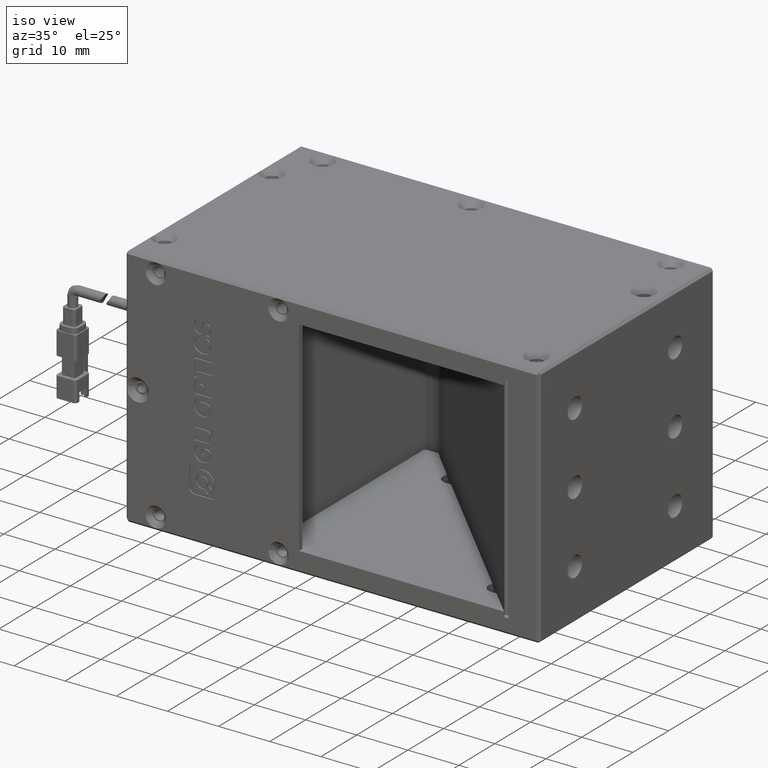
[diagram: clean part render]
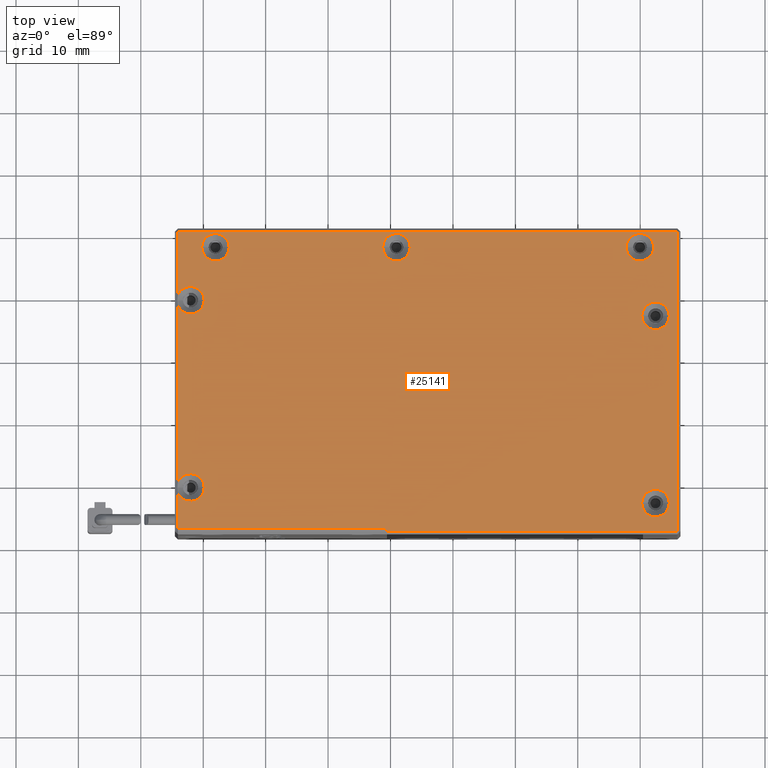
[diagram: tour spotlight — one face highlighted and labeled with its STEP entity id]
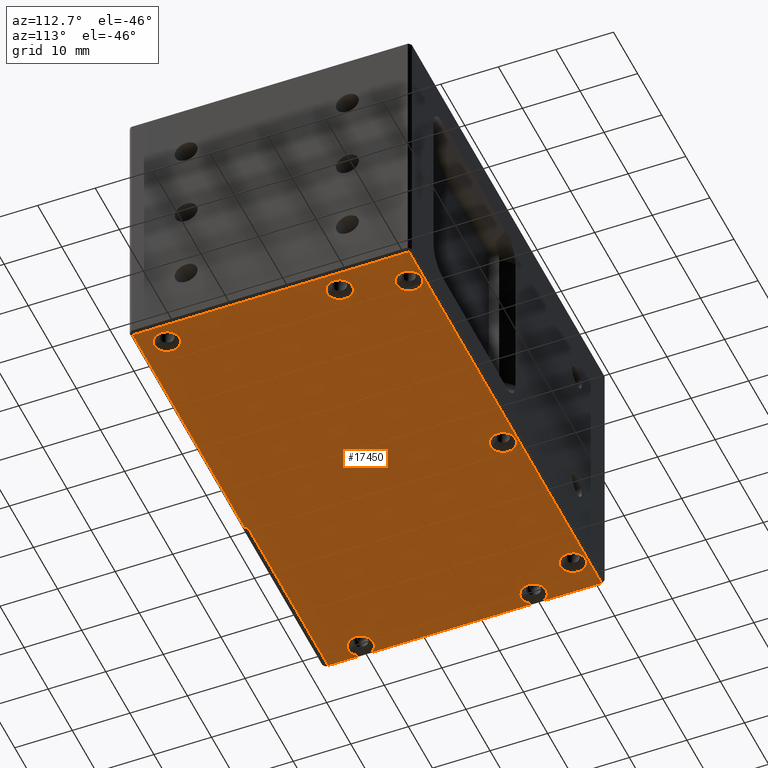
[diagram: tour spotlight — one face highlighted and labeled with its STEP entity id]
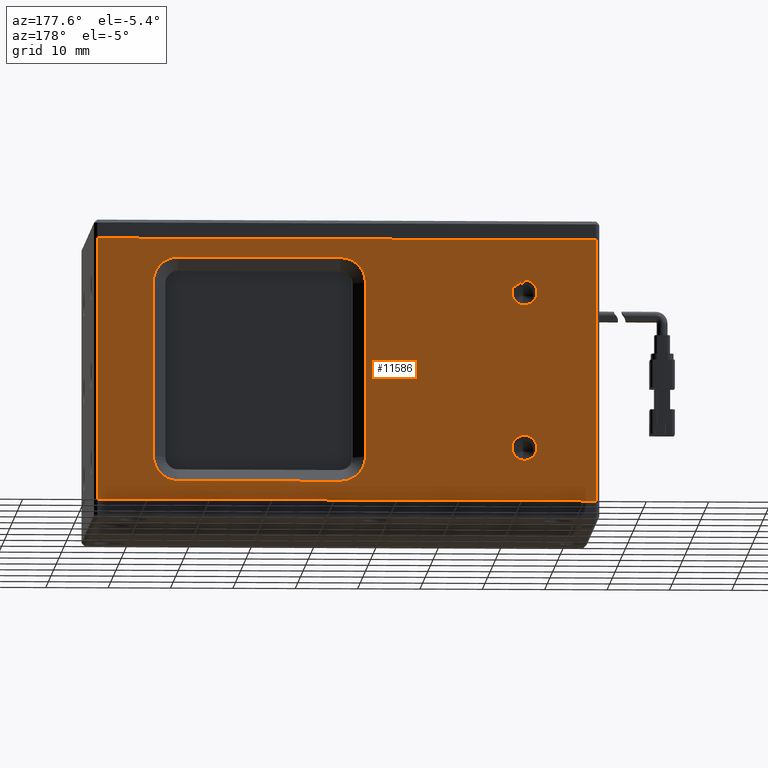
[diagram: tour spotlight — one face highlighted and labeled with its STEP entity id]
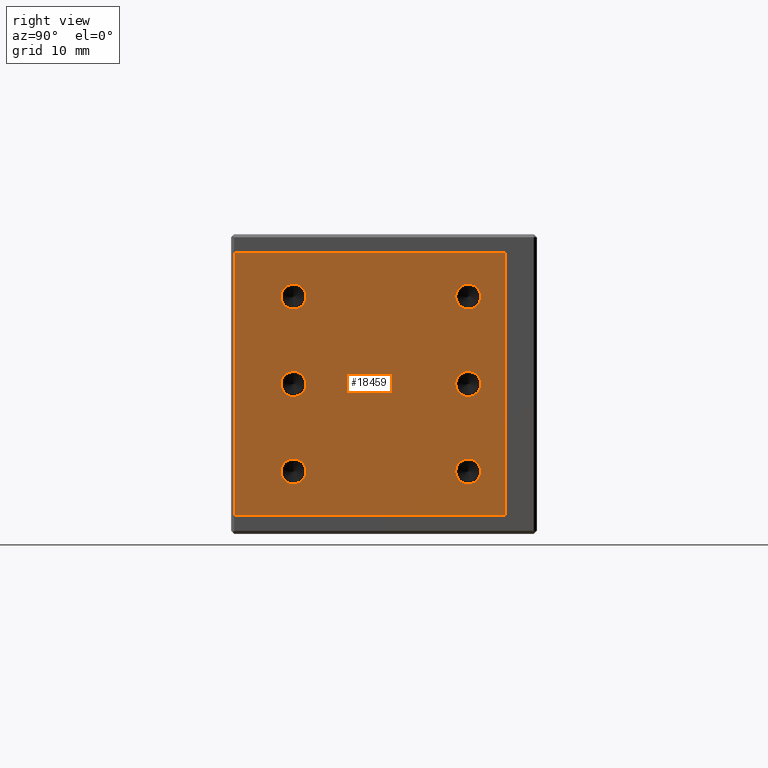
[diagram: tour spotlight — one face highlighted and labeled with its STEP entity id]
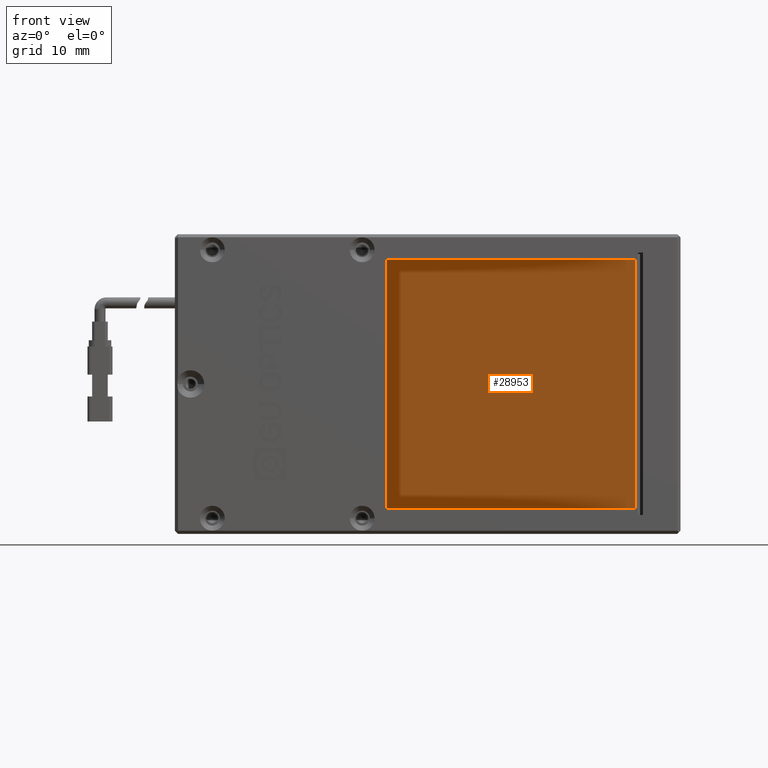
[diagram: tour spotlight — one face highlighted and labeled with its STEP entity id]
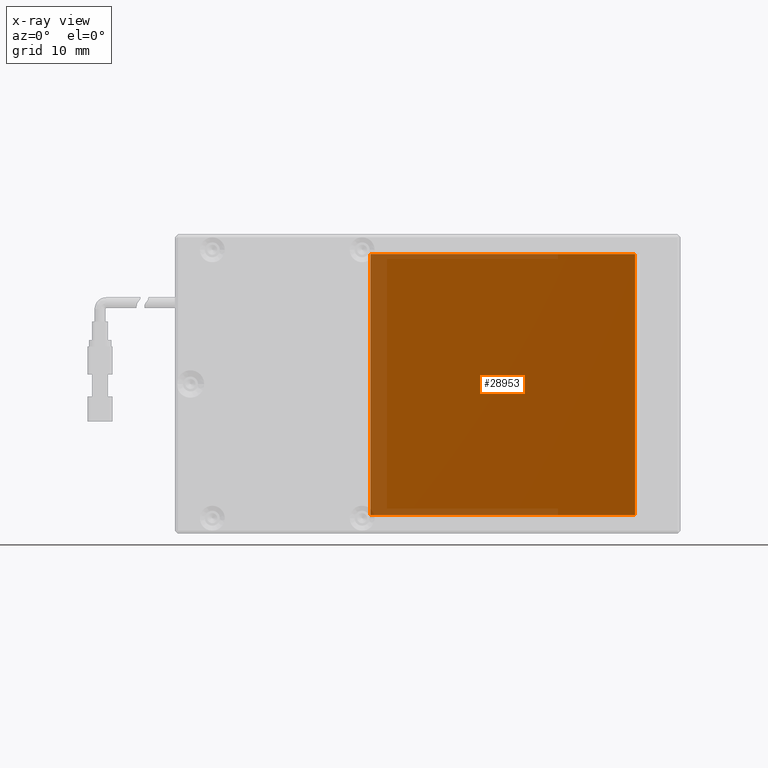
[diagram: x-ray of the same camera — body ghosted, this tour face saturated]
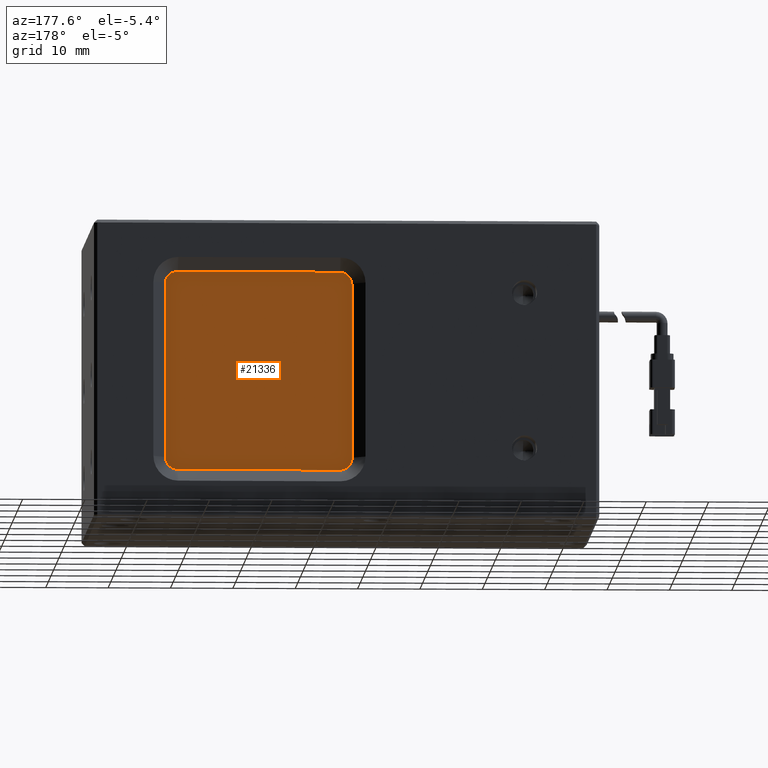
[diagram: tour spotlight — one face highlighted and labeled with its STEP entity id]
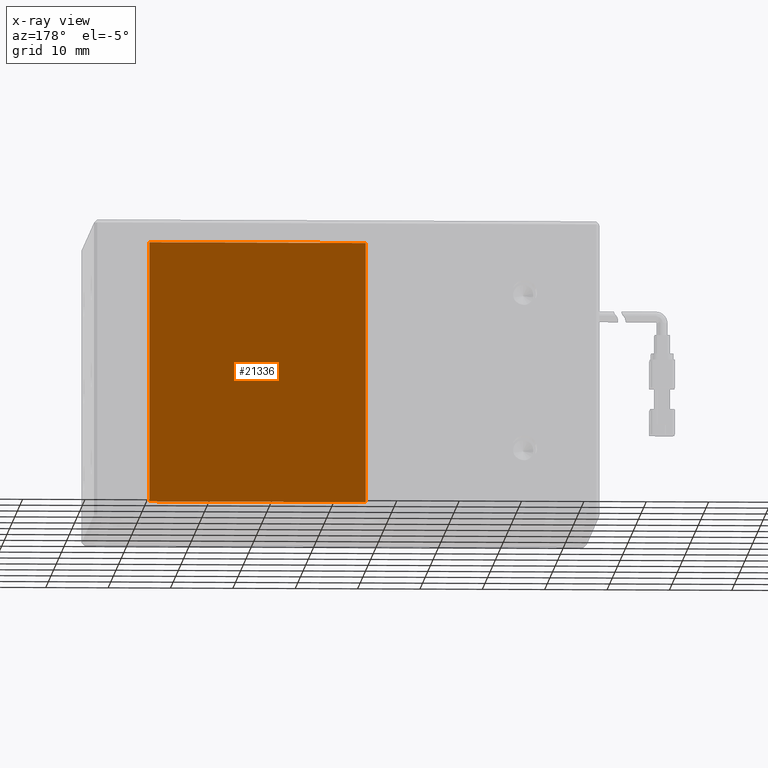
[diagram: x-ray of the same camera — body ghosted, this tour face saturated]
A machine part: a face-by-face anatomy tour. The part has 631 B-rep faces; the first image is the clean iso view, then the 6 largest visible faces are spotlighted one at a time (largest first), each with its STEP entity span.

Face 1 — top view, entity #25141. In plain terms, the highlighted planar face has unit normal (0, 0, -1).
Definition (entity closure, byte-faithful):
#36 = EDGE_CURVE ( 'NONE', #16413, #29040, #20863, .T. ) ;
#273 = DIRECTION ( 'NONE',  ( 1.000000000000000000, 0.0000000000000000000, 0.0000000000000000000 ) ) ;
#325 = DIRECTION ( 'NONE',  ( 1.000000000000000000, 0.0000000000000000000, 0.0000000000000000000 ) ) ;
#388 = VERTEX_POINT ( 'NONE', #17064 ) ;
#668 = CIRCLE ( 'NONE', #18609, 2.200000000000049000 ) ;
#821 = VERTEX_POINT ( 'NONE', #26844 ) ;
#930 = ORIENTED_EDGE ( 'NONE', *, *, #3317, .F. ) ;
#1163 = CARTESIAN_POINT ( 'NONE',  ( 35.95909811852001100, 16.24734783201899900, 7.999999999995000400 ) ) ;
#1500 = AXIS2_PLACEMENT_3D ( 'NONE', #6205, #21893, #8457 ) ;
#1813 = ORIENTED_EDGE ( 'NONE', *, *, #23204, .F. ) ;
#1876 = VECTOR ( 'NONE', #17130, 1000.000000000000000 ) ;
#2009 = ORIENTED_EDGE ( 'NONE', *, *, #17161, .F. ) ;
#2198 = EDGE_CURVE ( 'NONE', #29040, #16413, #9970, .T. ) ;
#2203 = AXIS2_PLACEMENT_3D ( 'NONE', #7810, #23499, #10066 ) ;
#2340 = PLANE ( 'NONE',  #10142 ) ;
#2380 = EDGE_CURVE ( 'NONE', #8330, #11225, #20515, .T. ) ;
#2762 = VERTEX_POINT ( 'NONE', #7933 ) ;
#2783 = EDGE_CURVE ( 'NONE', #5257, #5436, #9577, .T. ) ;
#3317 = EDGE_CURVE ( 'NONE', #17710, #26183, #28180, .T. ) ;
#3585 = CARTESIAN_POINT ( 'NONE',  ( -9.040901881483998500, 37.74734783202000400, 7.999999999994993300 ) ) ;
#3654 = EDGE_CURVE ( 'NONE', #7943, #16578, #8425, .T. ) ;
#3792 = DIRECTION ( 'NONE',  ( -0.0000000000000000000, 0.0000000000000000000, 1.000000000000000000 ) ) ;
#3824 = CARTESIAN_POINT ( 'NONE',  ( -44.04090188147998200, 30.16386297101128400, 7.999999999995018200 ) ) ;
#4049 = FACE_OUTER_BOUND ( 'NONE', #6156, .T. ) ;
#4216 = CARTESIAN_POINT ( 'NONE',  ( 34.65909811852005600, 26.74734783202000400, 7.999999999995044000 ) ) ;
#4444 = EDGE_CURVE ( 'NONE', #26183, #8964, #11515, .T. ) ;
#4553 = ORIENTED_EDGE ( 'NONE', *, *, #36, .F. ) ;
#4580 = AXIS2_PLACEMENT_3D ( 'NONE', #11483, #27190, #13727 ) ;
#4754 = FACE_BOUND ( 'NONE', #19148, .T. ) ;
#4949 = VECTOR ( 'NONE', #325, 1000.000000000000000 ) ;
#5007 = CARTESIAN_POINT ( 'NONE',  ( 32.45909811852000400, -3.252652167981999700, 7.999999999995044000 ) ) ;
#5257 = VERTEX_POINT ( 'NONE', #16468 ) ;
#5300 = CARTESIAN_POINT ( 'NONE',  ( -42.04090188148000400, -0.7526521679824000900, 7.999999999995042200 ) ) ;
#5416 = EDGE_CURVE ( 'NONE', #11533, #8330, #8053, .T. ) ;
#5436 = VERTEX_POINT ( 'NONE', #19620 ) ;
#5544 = VERTEX_POINT ( 'NONE', #4216 ) ;
#5726 = AXIS2_PLACEMENT_3D ( 'NONE', #17189, #3792, #19482 ) ;
#5865 = DIRECTION ( 'NONE',  ( 1.000000000000000000, 0.0000000000000000000, 0.0000000000000000000 ) ) ;
#5997 = CARTESIAN_POINT ( 'NONE',  ( -44.04090188148001100, 16.49734783201899900, 7.999999999994993300 ) ) ;
#6156 = EDGE_LOOP ( 'NONE', ( #17929, #930, #9768, #24521, #10140, #6629, #22001, #17059, #6332, #15042, #27068, #15411 ) ) ;
#6205 = CARTESIAN_POINT ( 'NONE',  ( -9.040901881483998500, 37.74734783202000400, 7.999999999994993300 ) ) ;
#6332 = ORIENTED_EDGE ( 'NONE', *, *, #21235, .F. ) ;
#6471 = DIRECTION ( 'NONE',  ( -0.0000000000000000000, 0.0000000000000000000, 1.000000000000000000 ) ) ;
#6484 = CARTESIAN_POINT ( 'NONE',  ( 34.65909811852005600, -3.252652167981999700, 7.999999999995044000 ) ) ;
#6491 = ORIENTED_EDGE ( 'NONE', *, *, #2783, .F. ) ;
#6629 = ORIENTED_EDGE ( 'NONE', *, *, #18768, .F. ) ;
#6975 = DIRECTION ( 'NONE',  ( 0.0000000000000000000, 0.0000000000000000000, -1.000000000000000000 ) ) ;
#7273 = DIRECTION ( 'NONE',  ( 1.000000000000000000, 0.0000000000000000000, 0.0000000000000000000 ) ) ;
#7322 = AXIS2_PLACEMENT_3D ( 'NONE', #11622, #12016, #12120 ) ;
#7546 = DIRECTION ( 'NONE',  ( 1.000000000000000000, 0.0000000000000000000, 0.0000000000000000000 ) ) ;
#7636 = EDGE_CURVE ( 'NONE', #23287, #27997, #668, .T. ) ;
#7810 = CARTESIAN_POINT ( 'NONE',  ( 32.45909811852000400, 26.74734783202000400, 7.999999999995044000 ) ) ;
#7844 = EDGE_CURVE ( 'NONE', #388, #17710, #28866, .T. ) ;
#7933 = CARTESIAN_POINT ( 'NONE',  ( 27.75909811852001100, 37.74734783202000400, 7.999999999994993300 ) ) ;
#7943 = VERTEX_POINT ( 'NONE', #25433 ) ;
#8053 = LINE ( 'NONE', #5997, #25982 ) ;
#8281 = VERTEX_POINT ( 'NONE', #26681 ) ;
#8330 = VERTEX_POINT ( 'NONE', #19990 ) ;
#8425 = CIRCLE ( 'NONE', #4580, 2.200000000000049000 ) ;
#8457 = DIRECTION ( 'NONE',  ( 1.000000000000000000, 0.0000000000000000000, 0.0000000000000000000 ) ) ;
#8964 = VERTEX_POINT ( 'NONE', #18332 ) ;
#9418 = DIRECTION ( 'NONE',  ( 0.0000000000000000000, -1.000000000000000000, 0.0000000000000000000 ) ) ;
#9528 = LINE ( 'NONE', #16043, #26439 ) ;
#9577 = CIRCLE ( 'NONE', #19003, 2.199999999995996700 ) ;
#9688 = DIRECTION ( 'NONE',  ( -0.0000000000000000000, 0.0000000000000000000, 1.000000000000000000 ) ) ;
#9768 = ORIENTED_EDGE ( 'NONE', *, *, #7844, .F. ) ;
#9871 = AXIS2_PLACEMENT_3D ( 'NONE', #10380, #26089, #12637 ) ;
#9970 = CIRCLE ( 'NONE', #13721, 2.199999999999993500 ) ;
#10024 = FACE_BOUND ( 'NONE', #14559, .T. ) ;
#10066 = DIRECTION ( 'NONE',  ( 1.000000000000000000, 0.0000000000000000000, 0.0000000000000000000 ) ) ;
#10140 = ORIENTED_EDGE ( 'NONE', *, *, #3654, .F. ) ;
#10142 = AXIS2_PLACEMENT_3D ( 'NONE', #20411, #6975, #22664 ) ;
#10151 = CARTESIAN_POINT ( 'NONE',  ( 35.95909811852001100, 40.24734783201996900, 7.999999999995000400 ) ) ;
#10232 = VECTOR ( 'NONE', #23572, 1000.000000000000000 ) ;
#10380 = CARTESIAN_POINT ( 'NONE',  ( 32.45909811852000400, -3.252652167981999700, 7.999999999995044000 ) ) ;
#10522 = DIRECTION ( 'NONE',  ( 0.0000000000000000000, -1.000000000000000000, 0.0000000000000000000 ) ) ;
#10690 = CARTESIAN_POINT ( 'NONE',  ( 35.95909811852001100, -7.752652167981978000, 7.999999999995000400 ) ) ;
#10749 = CIRCLE ( 'NONE', #1500, 2.199999999995996700 ) ;
#11098 = AXIS2_PLACEMENT_3D ( 'NONE', #23116, #9688, #25406 ) ;
#11225 = VERTEX_POINT ( 'NONE', #14261 ) ;
#11348 = CARTESIAN_POINT ( 'NONE',  ( 30.25909811851995500, -3.252652167981999700, 7.999999999995044000 ) ) ;
#11483 = CARTESIAN_POINT ( 'NONE',  ( -42.04090188148000400, 29.24734783202000400, 7.999999999995042200 ) ) ;
#11515 = LINE ( 'NONE', #26761, #16758 ) ;
#11533 = VERTEX_POINT ( 'NONE', #12798 ) ;
#11577 = CARTESIAN_POINT ( 'NONE',  ( -4.040901881480000000, 40.24734783201995500, 7.999999999995000400 ) ) ;
#11622 = CARTESIAN_POINT ( 'NONE',  ( -38.04090188147999600, 37.74734783202000400, 7.999999999994993300 ) ) ;
#11656 = VECTOR ( 'NONE', #14260, 1000.000000000000000 ) ;
#11898 = DIRECTION ( 'NONE',  ( -0.0000000000000000000, 0.0000000000000000000, 1.000000000000000000 ) ) ;
#12008 = CARTESIAN_POINT ( 'NONE',  ( -10.54090188148000000, -7.752652167982502000, 7.999999999995218900 ) ) ;
#12016 = DIRECTION ( 'NONE',  ( -0.0000000000000000000, 0.0000000000000000000, 1.000000000000000000 ) ) ;
#12120 = DIRECTION ( 'NONE',  ( 1.000000000000000000, 0.0000000000000000000, 0.0000000000000000000 ) ) ;
#12170 = EDGE_LOOP ( 'NONE', ( #12319, #18755 ) ) ;
#12195 = DIRECTION ( 'NONE',  ( -0.0000000000000000000, 0.0000000000000000000, 1.000000000000000000 ) ) ;
#12319 = ORIENTED_EDGE ( 'NONE', *, *, #7636, .F. ) ;
#12381 = LINE ( 'NONE', #12008, #11656 ) ;
#12587 = CARTESIAN_POINT ( 'NONE',  ( -27.54090188148199700, -7.252652167982001100, 7.999999999995218900 ) ) ;
#12637 = DIRECTION ( 'NONE',  ( 1.000000000000000000, 0.0000000000000000000, 0.0000000000000000000 ) ) ;
#12698 = EDGE_CURVE ( 'NONE', #388, #16578, #9528, .T. ) ;
#12798 = CARTESIAN_POINT ( 'NONE',  ( -44.04090188148007500, -1.669167306973294600, 7.999999999994945400 ) ) ;
#12961 = EDGE_CURVE ( 'NONE', #13810, #15255, #25474, .T. ) ;
#13307 = DIRECTION ( 'NONE',  ( 0.0000000000000000000, -1.000000000000000000, 0.0000000000000000000 ) ) ;
#13635 = EDGE_CURVE ( 'NONE', #5544, #821, #17908, .T. ) ;
#13721 = AXIS2_PLACEMENT_3D ( 'NONE', #25657, #12195, #27903 ) ;
#13727 = DIRECTION ( 'NONE',  ( 1.000000000000000000, 0.0000000000000000000, 0.0000000000000000000 ) ) ;
#13754 = DIRECTION ( 'NONE',  ( -0.0000000000000000000, 0.0000000000000000000, 1.000000000000000000 ) ) ;
#13810 = VERTEX_POINT ( 'NONE', #27036 ) ;
#13886 = EDGE_CURVE ( 'NONE', #2762, #8281, #24975, .T. ) ;
#14219 = CARTESIAN_POINT ( 'NONE',  ( -35.84090188148000100, 37.74734783202000400, 7.999999999994993300 ) ) ;
#14260 = DIRECTION ( 'NONE',  ( 0.0000000000000000000, -1.000000000000000000, 0.0000000000000000000 ) ) ;
#14261 = CARTESIAN_POINT ( 'NONE',  ( -10.54090188148163400, -7.252652167982049000, 7.999999999995182500 ) ) ;
#14427 = AXIS2_PLACEMENT_3D ( 'NONE', #19932, #6471, #22163 ) ;
#14559 = EDGE_LOOP ( 'NONE', ( #2009, #25235 ) ) ;
#14847 = CARTESIAN_POINT ( 'NONE',  ( -44.04090188147998200, 0.1638629710088799800, 7.999999999995018200 ) ) ;
#15042 = ORIENTED_EDGE ( 'NONE', *, *, #5416, .T. ) ;
#15255 = VERTEX_POINT ( 'NONE', #14847 ) ;
#15286 = CARTESIAN_POINT ( 'NONE',  ( -44.04090188148004600, 28.33083269302897000, 7.999999999994980000 ) ) ;
#15391 = CARTESIAN_POINT ( 'NONE',  ( -40.24090188147999200, 37.74734783202000400, 7.999999999994993300 ) ) ;
#15411 = ORIENTED_EDGE ( 'NONE', *, *, #27050, .T. ) ;
#15539 = DIRECTION ( 'NONE',  ( -1.000000000000000000, -0.0000000000000000000, -0.0000000000000000000 ) ) ;
#15582 = EDGE_CURVE ( 'NONE', #27997, #23287, #28488, .T. ) ;
#15947 = FACE_BOUND ( 'NONE', #12170, .T. ) ;
#16043 = CARTESIAN_POINT ( 'NONE',  ( -44.04090188148001100, 16.49734783201899900, 7.999999999994993300 ) ) ;
#16413 = VERTEX_POINT ( 'NONE', #14219 ) ;
#16468 = CARTESIAN_POINT ( 'NONE',  ( -11.24090188147999600, 37.74734783202000400, 7.999999999994993300 ) ) ;
#16578 = VERTEX_POINT ( 'NONE', #3824 ) ;
#16758 = VECTOR ( 'NONE', #15539, 1000.000000000000000 ) ;
#17059 = ORIENTED_EDGE ( 'NONE', *, *, #12961, .F. ) ;
#17064 = CARTESIAN_POINT ( 'NONE',  ( -44.04090188147811300, 40.24734783201689200, 7.999999999995069700 ) ) ;
#17130 = DIRECTION ( 'NONE',  ( 1.000000000000000000, -0.0000000000000000000, -0.0000000000000000000 ) ) ;
#17135 = ORIENTED_EDGE ( 'NONE', *, *, #25220, .F. ) ;
#17161 = EDGE_CURVE ( 'NONE', #8281, #2762, #18388, .T. ) ;
#17189 = CARTESIAN_POINT ( 'NONE',  ( 29.95909811852000000, 37.74734783202000400, 7.999999999994993300 ) ) ;
#17237 = CIRCLE ( 'NONE', #14427, 2.200000000000049000 ) ;
#17710 = VERTEX_POINT ( 'NONE', #10151 ) ;
#17908 = CIRCLE ( 'NONE', #2203, 2.200000000000049000 ) ;
#17929 = ORIENTED_EDGE ( 'NONE', *, *, #4444, .F. ) ;
#18326 = AXIS2_PLACEMENT_3D ( 'NONE', #5300, #20973, #7546 ) ;
#18332 = CARTESIAN_POINT ( 'NONE',  ( -10.54090188147997700, -7.752652167981874100, 7.999999999995115000 ) ) ;
#18388 = CIRCLE ( 'NONE', #5726, 2.199999999999983300 ) ;
#18609 = AXIS2_PLACEMENT_3D ( 'NONE', #5007, #20705, #7273 ) ;
#18755 = ORIENTED_EDGE ( 'NONE', *, *, #15582, .F. ) ;
#18768 = EDGE_CURVE ( 'NONE', #25538, #7943, #17237, .T. ) ;
#19003 = AXIS2_PLACEMENT_3D ( 'NONE', #3585, #19293, #5865 ) ;
#19148 = EDGE_LOOP ( 'NONE', ( #4553, #19776 ) ) ;
#19293 = DIRECTION ( 'NONE',  ( -0.0000000000000000000, 0.0000000000000000000, 1.000000000000000000 ) ) ;
#19482 = DIRECTION ( 'NONE',  ( 1.000000000000000000, 0.0000000000000000000, 0.0000000000000000000 ) ) ;
#19620 = CARTESIAN_POINT ( 'NONE',  ( -6.840901881488002300, 37.74734783202000400, 7.999999999994993300 ) ) ;
#19768 = LINE ( 'NONE', #24507, #25044 ) ;
#19776 = ORIENTED_EDGE ( 'NONE', *, *, #2198, .F. ) ;
#19932 = CARTESIAN_POINT ( 'NONE',  ( -42.04090188148000400, 29.24734783202000400, 7.999999999995042200 ) ) ;
#19990 = CARTESIAN_POINT ( 'NONE',  ( -44.04090188147989700, -7.252652167982002000, 7.999999999995104400 ) ) ;
#20411 = CARTESIAN_POINT ( 'NONE',  ( -45.64090188147999800, 41.20734783201999800, 7.999999999995000400 ) ) ;
#20515 = LINE ( 'NONE', #12587, #1876 ) ;
#20705 = DIRECTION ( 'NONE',  ( -0.0000000000000000000, 0.0000000000000000000, 1.000000000000000000 ) ) ;
#20863 = CIRCLE ( 'NONE', #7322, 2.199999999999993500 ) ;
#20973 = DIRECTION ( 'NONE',  ( -0.0000000000000000000, 0.0000000000000000000, 1.000000000000000000 ) ) ;
#21235 = EDGE_CURVE ( 'NONE', #11533, #13810, #26415, .T. ) ;
#21893 = DIRECTION ( 'NONE',  ( -0.0000000000000000000, 0.0000000000000000000, 1.000000000000000000 ) ) ;
#21945 = FACE_BOUND ( 'NONE', #28426, .T. ) ;
#22001 = ORIENTED_EDGE ( 'NONE', *, *, #26786, .T. ) ;
#22163 = DIRECTION ( 'NONE',  ( 1.000000000000000000, 0.0000000000000000000, 0.0000000000000000000 ) ) ;
#22664 = DIRECTION ( 'NONE',  ( 1.000000000000000000, 0.0000000000000000000, 0.0000000000000000000 ) ) ;
#23116 = CARTESIAN_POINT ( 'NONE',  ( -42.04090188148000400, -0.7526521679824000900, 7.999999999995042200 ) ) ;
#23204 = EDGE_CURVE ( 'NONE', #5436, #5257, #10749, .T. ) ;
#23287 = VERTEX_POINT ( 'NONE', #6484 ) ;
#23499 = DIRECTION ( 'NONE',  ( -0.0000000000000000000, 0.0000000000000000000, 1.000000000000000000 ) ) ;
#23572 = DIRECTION ( 'NONE',  ( 0.0000000000000000000, -1.000000000000000000, 0.0000000000000000000 ) ) ;
#23989 = EDGE_LOOP ( 'NONE', ( #24244, #17135 ) ) ;
#24244 = ORIENTED_EDGE ( 'NONE', *, *, #13635, .F. ) ;
#24507 = CARTESIAN_POINT ( 'NONE',  ( -44.04090188148001100, 16.49734783201899900, 7.999999999994993300 ) ) ;
#24521 = ORIENTED_EDGE ( 'NONE', *, *, #12698, .T. ) ;
#24975 = CIRCLE ( 'NONE', #28812, 2.199999999999983300 ) ;
#25044 = VECTOR ( 'NONE', #13307, 1000.000000000000000 ) ;
#25141 = ADVANCED_FACE ( 'NONE', ( #27970, #15947, #4754, #21945, #10024, #4049 ), #2340, .F. ) ;
#25220 = EDGE_CURVE ( 'NONE', #821, #5544, #25481, .T. ) ;
#25235 = ORIENTED_EDGE ( 'NONE', *, *, #13886, .F. ) ;
#25357 = CARTESIAN_POINT ( 'NONE',  ( 32.45909811852000400, 26.74734783202000400, 7.999999999995044000 ) ) ;
#25406 = DIRECTION ( 'NONE',  ( 1.000000000000000000, 0.0000000000000000000, 0.0000000000000000000 ) ) ;
#25433 = CARTESIAN_POINT ( 'NONE',  ( -39.84090188147995800, 29.24734783202000400, 7.999999999995042200 ) ) ;
#25474 = CIRCLE ( 'NONE', #18326, 2.200000000000049000 ) ;
#25481 = CIRCLE ( 'NONE', #28218, 2.200000000000049000 ) ;
#25538 = VERTEX_POINT ( 'NONE', #15286 ) ;
#25657 = CARTESIAN_POINT ( 'NONE',  ( -38.04090188147999600, 37.74734783202000400, 7.999999999994993300 ) ) ;
#25982 = VECTOR ( 'NONE', #10522, 1000.000000000000000 ) ;
#26089 = DIRECTION ( 'NONE',  ( -0.0000000000000000000, 0.0000000000000000000, 1.000000000000000000 ) ) ;
#26183 = VERTEX_POINT ( 'NONE', #10690 ) ;
#26415 = CIRCLE ( 'NONE', #11098, 2.200000000000049000 ) ;
#26439 = VECTOR ( 'NONE', #9418, 1000.000000000000000 ) ;
#26681 = CARTESIAN_POINT ( 'NONE',  ( 32.15909811851998500, 37.74734783202000400, 7.999999999994993300 ) ) ;
#26761 = CARTESIAN_POINT ( 'NONE',  ( -4.040901881479996400, -7.752652167981954000, 7.999999999995000400 ) ) ;
#26786 = EDGE_CURVE ( 'NONE', #25538, #15255, #19768, .T. ) ;
#26844 = CARTESIAN_POINT ( 'NONE',  ( 30.25909811851995500, 26.74734783202000400, 7.999999999995044000 ) ) ;
#27036 = CARTESIAN_POINT ( 'NONE',  ( -39.84090188147995800, -0.7526521679824000900, 7.999999999995042200 ) ) ;
#27050 = EDGE_CURVE ( 'NONE', #11225, #8964, #12381, .T. ) ;
#27068 = ORIENTED_EDGE ( 'NONE', *, *, #2380, .T. ) ;
#27190 = DIRECTION ( 'NONE',  ( -0.0000000000000000000, 0.0000000000000000000, 1.000000000000000000 ) ) ;
#27227 = CARTESIAN_POINT ( 'NONE',  ( 29.95909811852000000, 37.74734783202000400, 7.999999999994993300 ) ) ;
#27610 = DIRECTION ( 'NONE',  ( 1.000000000000000000, 0.0000000000000000000, 0.0000000000000000000 ) ) ;
#27903 = DIRECTION ( 'NONE',  ( 1.000000000000000000, 0.0000000000000000000, 0.0000000000000000000 ) ) ;
#27970 = FACE_BOUND ( 'NONE', #23989, .T. ) ;
#27997 = VERTEX_POINT ( 'NONE', #11348 ) ;
#28180 = LINE ( 'NONE', #1163, #10232 ) ;
#28218 = AXIS2_PLACEMENT_3D ( 'NONE', #25357, #11898, #27610 ) ;
#28426 = EDGE_LOOP ( 'NONE', ( #1813, #6491 ) ) ;
#28488 = CIRCLE ( 'NONE', #9871, 2.200000000000049000 ) ;
#28812 = AXIS2_PLACEMENT_3D ( 'NONE', #27227, #13754, #273 ) ;
#28866 = LINE ( 'NONE', #11577, #4949 ) ;
#29040 = VERTEX_POINT ( 'NONE', #15391 ) ;

Face 2 — auxiliary view, entity #17450. In plain terms, the highlighted planar face has unit normal (0, 0, 1).
Definition (entity closure, byte-faithful):
#73 = CARTESIAN_POINT ( 'NONE',  ( -9.040901881483998500, 37.74734783202000400, -40.00000000000000000 ) ) ;
#113 = CARTESIAN_POINT ( 'NONE',  ( 30.25909811851995800, -3.252652167981999700, -40.00000000000003600 ) ) ;
#498 = CARTESIAN_POINT ( 'NONE',  ( -9.040901881483998500, 37.74734783202000400, -40.00000000000000000 ) ) ;
#571 = VERTEX_POINT ( 'NONE', #18549 ) ;
#575 = EDGE_CURVE ( 'NONE', #27119, #18346, #24181, .T. ) ;
#814 = ORIENTED_EDGE ( 'NONE', *, *, #24578, .F. ) ;
#891 = CARTESIAN_POINT ( 'NONE',  ( -42.04090188148000400, 29.24734783202000400, -40.00000000000005000 ) ) ;
#969 = DIRECTION ( 'NONE',  ( -0.0000000000000000000, -1.000000000000000000, -0.0000000000000000000 ) ) ;
#1003 = CARTESIAN_POINT ( 'NONE',  ( 29.95909811852000000, 37.74734783202000400, -40.00000000000000000 ) ) ;
#1069 = EDGE_CURVE ( 'NONE', #5352, #19829, #3369, .T. ) ;
#1249 = AXIS2_PLACEMENT_3D ( 'NONE', #5489, #21157, #7751 ) ;
#1536 = AXIS2_PLACEMENT_3D ( 'NONE', #4945, #20641, #7201 ) ;
#1619 = VERTEX_POINT ( 'NONE', #21141 ) ;
#2366 = DIRECTION ( 'NONE',  ( -1.000000000000000000, 0.0000000000000000000, 0.0000000000000000000 ) ) ;
#2419 = CARTESIAN_POINT ( 'NONE',  ( -39.84090188147995800, 29.24734783202000400, -40.00000000000005000 ) ) ;
#2592 = VERTEX_POINT ( 'NONE', #113 ) ;
#2719 = VECTOR ( 'NONE', #21549, 1000.000000000000000 ) ;
#2786 = DIRECTION ( 'NONE',  ( -1.000000000000000000, 0.0000000000000000000, 0.0000000000000000000 ) ) ;
#2884 = DIRECTION ( 'NONE',  ( -0.0000000000000000000, -1.000000000000000000, -0.0000000000000000000 ) ) ;
#3078 = CIRCLE ( 'NONE', #11547, 2.200000000000007300 ) ;
#3190 = DIRECTION ( 'NONE',  ( -1.000000000000000000, 0.0000000000000000000, 0.0000000000000000000 ) ) ;
#3191 = CARTESIAN_POINT ( 'NONE',  ( 35.95909811852001100, -7.752652167981985100, -40.00000000000001400 ) ) ;
#3299 = DIRECTION ( 'NONE',  ( -1.000000000000000000, 0.0000000000000000000, 0.0000000000000000000 ) ) ;
#3369 = LINE ( 'NONE', #7705, #26552 ) ;
#3376 = DIRECTION ( 'NONE',  ( -0.0000000000000000000, -1.000000000000000000, -0.0000000000000000000 ) ) ;
#3588 = CARTESIAN_POINT ( 'NONE',  ( -4.040901881479996400, 40.24734783201995500, -40.00000000000000000 ) ) ;
#3754 = EDGE_CURVE ( 'NONE', #14663, #4446, #4201, .T. ) ;
#4201 = CIRCLE ( 'NONE', #13600, 2.200000000000049000 ) ;
#4236 = CIRCLE ( 'NONE', #20949, 2.199999999999997100 ) ;
#4379 = ORIENTED_EDGE ( 'NONE', *, *, #5149, .F. ) ;
#4423 = VECTOR ( 'NONE', #25531, 1000.000000000000000 ) ;
#4446 = VERTEX_POINT ( 'NONE', #17672 ) ;
#4483 = CIRCLE ( 'NONE', #10078, 2.199999999996005600 ) ;
#4591 = ORIENTED_EDGE ( 'NONE', *, *, #16951, .F. ) ;
#4862 = DIRECTION ( 'NONE',  ( 0.0000000000000000000, 0.0000000000000000000, 1.000000000000000000 ) ) ;
#4889 = CARTESIAN_POINT ( 'NONE',  ( -35.84090188147998600, 37.74734783202000400, -40.00000000000000700 ) ) ;
#4945 = CARTESIAN_POINT ( 'NONE',  ( -38.04090188147999600, 37.74734783202000400, -40.00000000000000700 ) ) ;
#5057 = FACE_BOUND ( 'NONE', #24497, .T. ) ;
#5104 = CARTESIAN_POINT ( 'NONE',  ( 32.45909811852000400, 26.74734783202000400, -40.00000000000003600 ) ) ;
#5149 = EDGE_CURVE ( 'NONE', #24615, #571, #25324, .T. ) ;
#5164 = DIRECTION ( 'NONE',  ( 0.0000000000000000000, 0.0000000000000000000, -1.000000000000000000 ) ) ;
#5352 = VERTEX_POINT ( 'NONE', #16753 ) ;
#5470 = CARTESIAN_POINT ( 'NONE',  ( -10.54090188148000000, -7.752652167982502000, -40.00000000000519400 ) ) ;
#5489 = CARTESIAN_POINT ( 'NONE',  ( -42.04090188148000400, -0.7526521679824000900, -40.00000000000005000 ) ) ;
#5521 = ORIENTED_EDGE ( 'NONE', *, *, #6455, .F. ) ;
#5720 = ORIENTED_EDGE ( 'NONE', *, *, #8938, .F. ) ;
#5928 = EDGE_CURVE ( 'NONE', #5352, #13679, #19947, .T. ) ;
#6105 = DIRECTION ( 'NONE',  ( -1.000000000000000000, -0.0000000000000000000, -0.0000000000000000000 ) ) ;
#6196 = VERTEX_POINT ( 'NONE', #27046 ) ;
#6410 = EDGE_LOOP ( 'NONE', ( #4379, #28036 ) ) ;
#6455 = EDGE_CURVE ( 'NONE', #26914, #11358, #19525, .T. ) ;
#6480 = ORIENTED_EDGE ( 'NONE', *, *, #6639, .F. ) ;
#6564 = CARTESIAN_POINT ( 'NONE',  ( 32.45909811852000400, -3.252652167981999700, -40.00000000000003600 ) ) ;
#6577 = AXIS2_PLACEMENT_3D ( 'NONE', #27525, #11819, #25278 ) ;
#6639 = EDGE_CURVE ( 'NONE', #1619, #11876, #21608, .T. ) ;
#6811 = ORIENTED_EDGE ( 'NONE', *, *, #21219, .T. ) ;
#6903 = AXIS2_PLACEMENT_3D ( 'NONE', #20511, #7077, #22780 ) ;
#6904 = CARTESIAN_POINT ( 'NONE',  ( 27.75909811852000100, 37.74734783202000400, -40.00000000000000000 ) ) ;
#6973 = VERTEX_POINT ( 'NONE', #8398 ) ;
#7077 = DIRECTION ( 'NONE',  ( 0.0000000000000000000, 0.0000000000000000000, -1.000000000000000000 ) ) ;
#7182 = ORIENTED_EDGE ( 'NONE', *, *, #13040, .F. ) ;
#7201 = DIRECTION ( 'NONE',  ( -1.000000000000000000, 0.0000000000000000000, 0.0000000000000000000 ) ) ;
#7361 = DIRECTION ( 'NONE',  ( -1.000000000000000000, 0.0000000000000000000, 0.0000000000000000000 ) ) ;
#7672 = AXIS2_PLACEMENT_3D ( 'NONE', #10334, #26056, #12602 ) ;
#7705 = CARTESIAN_POINT ( 'NONE',  ( 35.95909811851999600, 16.12234783201900600, -40.00000000000000700 ) ) ;
#7751 = DIRECTION ( 'NONE',  ( -1.000000000000000000, 0.0000000000000000000, 0.0000000000000000000 ) ) ;
#8033 = ORIENTED_EDGE ( 'NONE', *, *, #29017, .F. ) ;
#8398 = CARTESIAN_POINT ( 'NONE',  ( -40.24090188147999900, 37.74734783202000400, -40.00000000000000700 ) ) ;
#8414 = CARTESIAN_POINT ( 'NONE',  ( -42.04090188148000400, 29.24734783202000400, -40.00000000000005000 ) ) ;
#8632 = EDGE_CURVE ( 'NONE', #24066, #20601, #16406, .T. ) ;
#8814 = DIRECTION ( 'NONE',  ( -1.000000000000000000, 0.0000000000000000000, 0.0000000000000000000 ) ) ;
#8840 = ORIENTED_EDGE ( 'NONE', *, *, #1069, .T. ) ;
#8938 = EDGE_CURVE ( 'NONE', #21148, #6973, #12558, .T. ) ;
#9068 = LINE ( 'NONE', #5470, #26314 ) ;
#9181 = VECTOR ( 'NONE', #14081, 1000.000000000000000 ) ;
#9822 = CIRCLE ( 'NONE', #10564, 2.200000000000049000 ) ;
#10057 = CARTESIAN_POINT ( 'NONE',  ( -44.04090188148001100, 0.1638629710088006800, -40.00000000000002100 ) ) ;
#10078 = AXIS2_PLACEMENT_3D ( 'NONE', #73, #15789, #2366 ) ;
#10334 = CARTESIAN_POINT ( 'NONE',  ( 32.45909811852000400, 26.74734783202000400, -40.00000000000003600 ) ) ;
#10336 = FACE_OUTER_BOUND ( 'NONE', #25164, .T. ) ;
#10564 = AXIS2_PLACEMENT_3D ( 'NONE', #26335, #12883, #28601 ) ;
#10674 = DIRECTION ( 'NONE',  ( -1.000000000000000000, 0.0000000000000000000, 0.0000000000000000000 ) ) ;
#10893 = EDGE_CURVE ( 'NONE', #20601, #24794, #25987, .T. ) ;
#11022 = FACE_BOUND ( 'NONE', #21658, .T. ) ;
#11122 = VECTOR ( 'NONE', #2884, 1000.000000000000000 ) ;
#11124 = ORIENTED_EDGE ( 'NONE', *, *, #10893, .F. ) ;
#11151 = EDGE_CURVE ( 'NONE', #6973, #21148, #3078, .T. ) ;
#11358 = VERTEX_POINT ( 'NONE', #19162 ) ;
#11422 = CIRCLE ( 'NONE', #23795, 2.200000000000049000 ) ;
#11524 = CARTESIAN_POINT ( 'NONE',  ( -44.04090188147998200, -1.669167306973658300, -40.00000000000002100 ) ) ;
#11547 = AXIS2_PLACEMENT_3D ( 'NONE', #18558, #5164, #20826 ) ;
#11819 = DIRECTION ( 'NONE',  ( 0.0000000000000000000, 0.0000000000000000000, -1.000000000000000000 ) ) ;
#11876 = VERTEX_POINT ( 'NONE', #23390 ) ;
#11914 = CARTESIAN_POINT ( 'NONE',  ( -44.04090188147998200, 28.33083269302874600, -40.00000000000002100 ) ) ;
#12037 = CARTESIAN_POINT ( 'NONE',  ( -44.04090188148000400, 16.24734783201899900, -40.00000000000000000 ) ) ;
#12048 = VERTEX_POINT ( 'NONE', #26935 ) ;
#12558 = CIRCLE ( 'NONE', #1536, 2.200000000000007300 ) ;
#12602 = DIRECTION ( 'NONE',  ( -1.000000000000000000, 0.0000000000000000000, 0.0000000000000000000 ) ) ;
#12683 = AXIS2_PLACEMENT_3D ( 'NONE', #8414, #24114, #10674 ) ;
#12883 = DIRECTION ( 'NONE',  ( 0.0000000000000000000, 0.0000000000000000000, -1.000000000000000000 ) ) ;
#12973 = ORIENTED_EDGE ( 'NONE', *, *, #27266, .T. ) ;
#13040 = EDGE_CURVE ( 'NONE', #18346, #26914, #16611, .T. ) ;
#13600 = AXIS2_PLACEMENT_3D ( 'NONE', #5104, #20788, #7361 ) ;
#13679 = VERTEX_POINT ( 'NONE', #24285 ) ;
#14081 = DIRECTION ( 'NONE',  ( -1.000000000000000000, 0.0000000000000000000, 0.0000000000000000000 ) ) ;
#14136 = EDGE_CURVE ( 'NONE', #2592, #14922, #9822, .T. ) ;
#14663 = VERTEX_POINT ( 'NONE', #14973 ) ;
#14922 = VERTEX_POINT ( 'NONE', #22598 ) ;
#14973 = CARTESIAN_POINT ( 'NONE',  ( 34.65909811852005600, 26.74734783202000400, -40.00000000000003600 ) ) ;
#15104 = AXIS2_PLACEMENT_3D ( 'NONE', #18227, #4862, #20530 ) ;
#15466 = LINE ( 'NONE', #17239, #21465 ) ;
#15502 = EDGE_CURVE ( 'NONE', #571, #24615, #4236, .T. ) ;
#15608 = LINE ( 'NONE', #12037, #4423 ) ;
#15789 = DIRECTION ( 'NONE',  ( 0.0000000000000000000, 0.0000000000000000000, -1.000000000000000000 ) ) ;
#15865 = EDGE_LOOP ( 'NONE', ( #6480, #814 ) ) ;
#16194 = DIRECTION ( 'NONE',  ( 0.0000000000000000000, 0.0000000000000000000, -1.000000000000000000 ) ) ;
#16241 = FACE_BOUND ( 'NONE', #24935, .T. ) ;
#16406 = CIRCLE ( 'NONE', #16770, 2.200000000000049000 ) ;
#16589 = DIRECTION ( 'NONE',  ( 0.0000000000000000000, 0.0000000000000000000, -1.000000000000000000 ) ) ;
#16611 = CIRCLE ( 'NONE', #1249, 2.200000000000049000 ) ;
#16705 = DIRECTION ( 'NONE',  ( 0.0000000000000000000, 0.0000000000000000000, -1.000000000000000000 ) ) ;
#16753 = CARTESIAN_POINT ( 'NONE',  ( 35.95909811851935700, 40.24734783201996200, -40.00000000000022700 ) ) ;
#16764 = ORIENTED_EDGE ( 'NONE', *, *, #22999, .F. ) ;
#16770 = AXIS2_PLACEMENT_3D ( 'NONE', #891, #16589, #3190 ) ;
#16951 = EDGE_CURVE ( 'NONE', #24794, #27119, #15608, .T. ) ;
#17239 = CARTESIAN_POINT ( 'NONE',  ( 12.83409811852000200, -7.752652167981996600, -40.00000000000000700 ) ) ;
#17450 = ADVANCED_FACE ( 'NONE', ( #11022, #16241, #5057, #22247, #28273, #10336 ), #22489, .F. ) ;
#17462 = CARTESIAN_POINT ( 'NONE',  ( -39.84090188147995800, -0.7526521679823998700, -40.00000000000005000 ) ) ;
#17672 = CARTESIAN_POINT ( 'NONE',  ( 30.25909811851995800, 26.74734783202000400, -40.00000000000003600 ) ) ;
#17975 = ORIENTED_EDGE ( 'NONE', *, *, #8632, .F. ) ;
#18065 = CARTESIAN_POINT ( 'NONE',  ( -44.04090188148009600, 30.16386297101079000, -39.99999999999992200 ) ) ;
#18227 = CARTESIAN_POINT ( 'NONE',  ( -45.64090188147999800, -8.712652167982001900, -40.00000000000000000 ) ) ;
#18346 = VERTEX_POINT ( 'NONE', #17462 ) ;
#18549 = CARTESIAN_POINT ( 'NONE',  ( 32.15909811851999900, 37.74734783202000400, -40.00000000000000000 ) ) ;
#18558 = CARTESIAN_POINT ( 'NONE',  ( -38.04090188147999600, 37.74734783202000400, -40.00000000000000700 ) ) ;
#18597 = ORIENTED_EDGE ( 'NONE', *, *, #575, .F. ) ;
#18637 = EDGE_CURVE ( 'NONE', #4446, #14663, #28591, .T. ) ;
#19162 = CARTESIAN_POINT ( 'NONE',  ( -44.04090188148002500, -7.252652167981964700, -40.00000000000172700 ) ) ;
#19525 = LINE ( 'NONE', #28048, #27636 ) ;
#19829 = VERTEX_POINT ( 'NONE', #3191 ) ;
#19947 = LINE ( 'NONE', #3588, #2719 ) ;
#20511 = CARTESIAN_POINT ( 'NONE',  ( 29.95909811852000000, 37.74734783202000400, -40.00000000000000000 ) ) ;
#20530 = DIRECTION ( 'NONE',  ( 1.000000000000000000, 0.0000000000000000000, 0.0000000000000000000 ) ) ;
#20601 = VERTEX_POINT ( 'NONE', #2419 ) ;
#20641 = DIRECTION ( 'NONE',  ( 0.0000000000000000000, 0.0000000000000000000, -1.000000000000000000 ) ) ;
#20788 = DIRECTION ( 'NONE',  ( 0.0000000000000000000, 0.0000000000000000000, -1.000000000000000000 ) ) ;
#20826 = DIRECTION ( 'NONE',  ( -1.000000000000000000, 0.0000000000000000000, 0.0000000000000000000 ) ) ;
#20845 = ORIENTED_EDGE ( 'NONE', *, *, #14136, .F. ) ;
#20949 = AXIS2_PLACEMENT_3D ( 'NONE', #1003, #16705, #3299 ) ;
#21140 = DIRECTION ( 'NONE',  ( 0.0000000000000000000, 1.000000000000000000, 0.0000000000000000000 ) ) ;
#21141 = CARTESIAN_POINT ( 'NONE',  ( -11.24090188148000600, 37.74734783202000400, -40.00000000000000000 ) ) ;
#21148 = VERTEX_POINT ( 'NONE', #4889 ) ;
#21157 = DIRECTION ( 'NONE',  ( 0.0000000000000000000, 0.0000000000000000000, -1.000000000000000000 ) ) ;
#21202 = ORIENTED_EDGE ( 'NONE', *, *, #24243, .T. ) ;
#21219 = EDGE_CURVE ( 'NONE', #12048, #11358, #27112, .T. ) ;
#21465 = VECTOR ( 'NONE', #6105, 1000.000000000000000 ) ;
#21549 = DIRECTION ( 'NONE',  ( -1.000000000000000000, -0.0000000000000000000, -0.0000000000000000000 ) ) ;
#21608 = CIRCLE ( 'NONE', #27663, 2.199999999996005600 ) ;
#21658 = EDGE_LOOP ( 'NONE', ( #27760, #25931 ) ) ;
#22247 = FACE_BOUND ( 'NONE', #15865, .T. ) ;
#22248 = DIRECTION ( 'NONE',  ( 0.0000000000000000000, 0.0000000000000000000, -1.000000000000000000 ) ) ;
#22489 = PLANE ( 'NONE',  #15104 ) ;
#22598 = CARTESIAN_POINT ( 'NONE',  ( 34.65909811852005600, -3.252652167981999700, -40.00000000000003600 ) ) ;
#22780 = DIRECTION ( 'NONE',  ( -1.000000000000000000, 0.0000000000000000000, 0.0000000000000000000 ) ) ;
#22999 = EDGE_CURVE ( 'NONE', #13679, #24066, #23783, .T. ) ;
#23012 = CARTESIAN_POINT ( 'NONE',  ( -44.04090188148000400, 16.24734783201899900, -40.00000000000000000 ) ) ;
#23390 = CARTESIAN_POINT ( 'NONE',  ( -6.840901881487991600, 37.74734783202000400, -40.00000000000000000 ) ) ;
#23783 = LINE ( 'NONE', #23012, #11122 ) ;
#23795 = AXIS2_PLACEMENT_3D ( 'NONE', #6564, #22248, #8814 ) ;
#24066 = VERTEX_POINT ( 'NONE', #18065 ) ;
#24114 = DIRECTION ( 'NONE',  ( 0.0000000000000000000, 0.0000000000000000000, -1.000000000000000000 ) ) ;
#24181 = CIRCLE ( 'NONE', #6577, 2.200000000000049000 ) ;
#24243 = EDGE_CURVE ( 'NONE', #6196, #12048, #9068, .T. ) ;
#24285 = CARTESIAN_POINT ( 'NONE',  ( -44.04090188148001100, 40.24734783201427000, -40.00000000000000000 ) ) ;
#24497 = EDGE_LOOP ( 'NONE', ( #28981, #5720 ) ) ;
#24578 = EDGE_CURVE ( 'NONE', #11876, #1619, #4483, .T. ) ;
#24615 = VERTEX_POINT ( 'NONE', #6904 ) ;
#24794 = VERTEX_POINT ( 'NONE', #11914 ) ;
#24935 = EDGE_LOOP ( 'NONE', ( #20845, #8033 ) ) ;
#25164 = EDGE_LOOP ( 'NONE', ( #5521, #7182, #18597, #4591, #11124, #17975, #16764, #26574, #8840, #12973, #21202, #6811 ) ) ;
#25278 = DIRECTION ( 'NONE',  ( -1.000000000000000000, 0.0000000000000000000, 0.0000000000000000000 ) ) ;
#25312 = CARTESIAN_POINT ( 'NONE',  ( -27.54090188148199700, -7.252652167982002000, -40.00000000000519400 ) ) ;
#25324 = CIRCLE ( 'NONE', #6903, 2.199999999999997100 ) ;
#25531 = DIRECTION ( 'NONE',  ( -0.0000000000000000000, -1.000000000000000000, -0.0000000000000000000 ) ) ;
#25931 = ORIENTED_EDGE ( 'NONE', *, *, #3754, .F. ) ;
#25987 = CIRCLE ( 'NONE', #12683, 2.200000000000049000 ) ;
#26056 = DIRECTION ( 'NONE',  ( 0.0000000000000000000, 0.0000000000000000000, -1.000000000000000000 ) ) ;
#26314 = VECTOR ( 'NONE', #21140, 1000.000000000000000 ) ;
#26335 = CARTESIAN_POINT ( 'NONE',  ( 32.45909811852000400, -3.252652167981999700, -40.00000000000003600 ) ) ;
#26552 = VECTOR ( 'NONE', #969, 1000.000000000000000 ) ;
#26574 = ORIENTED_EDGE ( 'NONE', *, *, #5928, .F. ) ;
#26914 = VERTEX_POINT ( 'NONE', #11524 ) ;
#26935 = CARTESIAN_POINT ( 'NONE',  ( -10.54090188148196300, -7.252652167982173400, -40.00000000000454700 ) ) ;
#27046 = CARTESIAN_POINT ( 'NONE',  ( -10.54090188147999800, -7.752652167981997500, -40.00000000000173400 ) ) ;
#27112 = LINE ( 'NONE', #25312, #9181 ) ;
#27119 = VERTEX_POINT ( 'NONE', #10057 ) ;
#27266 = EDGE_CURVE ( 'NONE', #19829, #6196, #15466, .T. ) ;
#27525 = CARTESIAN_POINT ( 'NONE',  ( -42.04090188148000400, -0.7526521679824000900, -40.00000000000005000 ) ) ;
#27636 = VECTOR ( 'NONE', #3376, 1000.000000000000000 ) ;
#27663 = AXIS2_PLACEMENT_3D ( 'NONE', #498, #16194, #2786 ) ;
#27760 = ORIENTED_EDGE ( 'NONE', *, *, #18637, .F. ) ;
#28036 = ORIENTED_EDGE ( 'NONE', *, *, #15502, .F. ) ;
#28048 = CARTESIAN_POINT ( 'NONE',  ( -44.04090188148000400, 16.24734783201899900, -40.00000000000000000 ) ) ;
#28273 = FACE_BOUND ( 'NONE', #6410, .T. ) ;
#28591 = CIRCLE ( 'NONE', #7672, 2.200000000000049000 ) ;
#28601 = DIRECTION ( 'NONE',  ( -1.000000000000000000, 0.0000000000000000000, 0.0000000000000000000 ) ) ;
#28981 = ORIENTED_EDGE ( 'NONE', *, *, #11151, .F. ) ;
#29017 = EDGE_CURVE ( 'NONE', #14922, #2592, #11422, .T. ) ;

Face 3 — auxiliary view, entity #11586. In plain terms, the highlighted planar face has unit normal (-0, -1, -0).
Definition (entity closure, byte-faithful):
#170 = DIRECTION ( 'NONE',  ( 0.0000000000000000000, 0.0000000000000000000, -1.000000000000000000 ) ) ;
#264 = CARTESIAN_POINT ( 'NONE',  ( 26.95909811851788300, 40.74734783201788700, -2.000000000004905000 ) ) ;
#285 = AXIS2_PLACEMENT_3D ( 'NONE', #18488, #5078, #20770 ) ;
#480 = EDGE_LOOP ( 'NONE', ( #3425, #4363 ) ) ;
#555 = CARTESIAN_POINT ( 'NONE',  ( -3.040901881483965700, 40.74734783201731900, 1.999999999996019200 ) ) ;
#897 = AXIS2_PLACEMENT_3D ( 'NONE', #26729, #13292, #29018 ) ;
#1105 = DIRECTION ( 'NONE',  ( 0.0000000000000000000, 1.000000000000000000, -0.0000000000000000000 ) ) ;
#1453 = AXIS2_PLACEMENT_3D ( 'NONE', #20756, #7330, #23006 ) ;
#1473 = VERTEX_POINT ( 'NONE', #14000 ) ;
#1806 = CARTESIAN_POINT ( 'NONE',  ( -4.040901881479996400, 40.74734783202000400, -37.00000000000009200 ) ) ;
#2083 = ORIENTED_EDGE ( 'NONE', *, *, #7617, .F. ) ;
#2263 = CARTESIAN_POINT ( 'NONE',  ( -4.040901881479992900, 40.74734783202000400, 4.999999999995100800 ) ) ;
#2482 = EDGE_CURVE ( 'NONE', #3831, #10176, #12084, .T. ) ;
#3011 = FACE_BOUND ( 'NONE', #480, .T. ) ;
#3086 = EDGE_CURVE ( 'NONE', #16831, #8372, #18249, .T. ) ;
#3192 = DIRECTION ( 'NONE',  ( -0.0000000000000000000, -0.0000000000000000000, 1.000000000000000000 ) ) ;
#3315 = CARTESIAN_POINT ( 'NONE',  ( -3.040901881484002100, 40.74734783201577700, -34.00000000000311200 ) ) ;
#3425 = ORIENTED_EDGE ( 'NONE', *, *, #15779, .F. ) ;
#3650 = ORIENTED_EDGE ( 'NONE', *, *, #5722, .F. ) ;
#3706 = EDGE_LOOP ( 'NONE', ( #18504, #23276, #12385, #7923, #3650, #22969, #11485, #7231 ) ) ;
#3831 = VERTEX_POINT ( 'NONE', #18819 ) ;
#4258 = VERTEX_POINT ( 'NONE', #3315 ) ;
#4274 = EDGE_LOOP ( 'NONE', ( #13852, #2083, #22826, #23785 ) ) ;
#4277 = LINE ( 'NONE', #27854, #10256 ) ;
#4363 = ORIENTED_EDGE ( 'NONE', *, *, #6000, .F. ) ;
#4416 = CIRCLE ( 'NONE', #1453, 4.000000000005773200 ) ;
#4472 = CARTESIAN_POINT ( 'NONE',  ( -32.54090188147999600, 40.74734783202045900, -3.500000000005000000 ) ) ;
#4795 = CARTESIAN_POINT ( 'NONE',  ( 35.95909811851500800, 40.74734783201999700, 4.999999999995084800 ) ) ;
#5078 = DIRECTION ( 'NONE',  ( -1.734723475973206500E-015, 1.000000000000000000, 0.0000000000000000000 ) ) ;
#5127 = VERTEX_POINT ( 'NONE', #264 ) ;
#5266 = CIRCLE ( 'NONE', #21358, 2.000000000000000000 ) ;
#5722 = EDGE_CURVE ( 'NONE', #4258, #15676, #19266, .T. ) ;
#6000 = EDGE_CURVE ( 'NONE', #22140, #23588, #9765, .T. ) ;
#6347 = LINE ( 'NONE', #24548, #28860 ) ;
#6554 = DIRECTION ( 'NONE',  ( 0.0000000000000000000, 0.0000000000000000000, -1.000000000000000000 ) ) ;
#6649 = CARTESIAN_POINT ( 'NONE',  ( 26.95909811852000700, 40.74734783201999700, -16.00000000000250100 ) ) ;
#6652 = EDGE_CURVE ( 'NONE', #14288, #1473, #4416, .T. ) ;
#6691 = CARTESIAN_POINT ( 'NONE',  ( 37.55909811852000500, 40.74734783202000400, 5.839999999995000300 ) ) ;
#6712 = DIRECTION ( 'NONE',  ( 0.0000000000000000000, 0.0000000000000000000, 1.000000000000000000 ) ) ;
#6761 = AXIS2_PLACEMENT_3D ( 'NONE', #7063, #22761, #9321 ) ;
#6862 = AXIS2_PLACEMENT_3D ( 'NONE', #6691, #22384, #8930 ) ;
#6894 = CARTESIAN_POINT ( 'NONE',  ( -44.04090188147999600, 40.74734783201999700, -16.00000000000250100 ) ) ;
#7001 = DIRECTION ( 'NONE',  ( -1.000000000000000000, 0.0000000000000000000, 0.0000000000000000000 ) ) ;
#7063 = CARTESIAN_POINT ( 'NONE',  ( 22.95909811852000400, 40.74734783201577700, -2.000000000005000000 ) ) ;
#7231 = ORIENTED_EDGE ( 'NONE', *, *, #22781, .F. ) ;
#7330 = DIRECTION ( 'NONE',  ( 0.0000000000000000000, 1.000000000000000000, -0.0000000000000000000 ) ) ;
#7458 = CARTESIAN_POINT ( 'NONE',  ( -32.54090188147999600, 40.74734783202045900, -1.500000000005000000 ) ) ;
#7617 = EDGE_CURVE ( 'NONE', #10176, #16831, #6347, .T. ) ;
#7923 = ORIENTED_EDGE ( 'NONE', *, *, #21319, .F. ) ;
#8372 = VERTEX_POINT ( 'NONE', #22334 ) ;
#8930 = DIRECTION ( 'NONE',  ( -1.000000000000000000, 0.0000000000000000000, 0.0000000000000000000 ) ) ;
#8972 = FACE_OUTER_BOUND ( 'NONE', #4274, .T. ) ;
#9321 = DIRECTION ( 'NONE',  ( 0.0000000000000000000, 0.0000000000000000000, 1.000000000000000000 ) ) ;
#9458 = CARTESIAN_POINT ( 'NONE',  ( -32.54090188147999600, 40.74734783202045900, -30.50000000000000000 ) ) ;
#9765 = CIRCLE ( 'NONE', #19330, 2.000000000000000000 ) ;
#9809 = CIRCLE ( 'NONE', #16180, 2.000000000000001800 ) ;
#9969 = VERTEX_POINT ( 'NONE', #9458 ) ;
#10112 = VECTOR ( 'NONE', #170, 1000.000000000000000 ) ;
#10176 = VERTEX_POINT ( 'NONE', #10241 ) ;
#10241 = CARTESIAN_POINT ( 'NONE',  ( 35.95909811851857500, 40.74734783201893200, -37.00000000000005000 ) ) ;
#10256 = VECTOR ( 'NONE', #3192, 1000.000000000000000 ) ;
#10547 = CARTESIAN_POINT ( 'NONE',  ( -32.54090188147999600, 40.74734783202045900, -26.49999999999999600 ) ) ;
#10779 = EDGE_CURVE ( 'NONE', #27224, #9969, #9809, .T. ) ;
#10787 = CARTESIAN_POINT ( 'NONE',  ( -4.040901881479996400, 40.74734783202000400, -34.00000000000044100 ) ) ;
#10905 = CARTESIAN_POINT ( 'NONE',  ( -3.040901881484003900, 40.74734783201578400, -2.000000000005000000 ) ) ;
#11485 = ORIENTED_EDGE ( 'NONE', *, *, #6652, .F. ) ;
#11586 = ADVANCED_FACE ( 'NONE', ( #26913, #3011, #20915, #8972 ), #24573, .F. ) ;
#11646 = VERTEX_POINT ( 'NONE', #13461 ) ;
#11875 = CIRCLE ( 'NONE', #897, 2.000000000000001800 ) ;
#12084 = LINE ( 'NONE', #1806, #23315 ) ;
#12385 = ORIENTED_EDGE ( 'NONE', *, *, #22211, .F. ) ;
#12462 = CARTESIAN_POINT ( 'NONE',  ( 22.95909811852082400, 40.74734783201744600, 1.999999999995577300 ) ) ;
#12843 = DIRECTION ( 'NONE',  ( 1.000000000000000000, -0.0000000000000000000, -0.0000000000000000000 ) ) ;
#12939 = CARTESIAN_POINT ( 'NONE',  ( -32.54090188147999600, 40.74734783202045900, -3.500000000005000000 ) ) ;
#13031 = DIRECTION ( 'NONE',  ( -1.000000000000000000, 0.0000000000000000000, 0.0000000000000000000 ) ) ;
#13155 = DIRECTION ( 'NONE',  ( -1.000000000000000000, -1.734723475976886000E-015, 0.0000000000000000000 ) ) ;
#13214 = EDGE_CURVE ( 'NONE', #28702, #22538, #13470, .T. ) ;
#13292 = DIRECTION ( 'NONE',  ( 0.0000000000000000000, 1.000000000000000000, -0.0000000000000000000 ) ) ;
#13461 = CARTESIAN_POINT ( 'NONE',  ( -7.040901881481902400, 40.74734783201577700, -2.000000000004793100 ) ) ;
#13470 = LINE ( 'NONE', #21665, #25441 ) ;
#13852 = ORIENTED_EDGE ( 'NONE', *, *, #3086, .F. ) ;
#14000 = CARTESIAN_POINT ( 'NONE',  ( 22.95909811851996100, 40.74734783201577700, -34.00000000000310500 ) ) ;
#14130 = CIRCLE ( 'NONE', #6761, 3.999999999999810800 ) ;
#14288 = VERTEX_POINT ( 'NONE', #20096 ) ;
#14599 = CARTESIAN_POINT ( 'NONE',  ( -32.54090188147999600, 40.74734783202045900, -28.49999999999999600 ) ) ;
#14736 = EDGE_CURVE ( 'NONE', #1473, #4258, #23423, .T. ) ;
#15075 = CIRCLE ( 'NONE', #19778, 3.999999999999817900 ) ;
#15152 = DIRECTION ( 'NONE',  ( 0.0000000000000000000, 0.0000000000000000000, 1.000000000000000000 ) ) ;
#15566 = DIRECTION ( 'NONE',  ( -0.0000000000000000000, -0.0000000000000000000, 1.000000000000000000 ) ) ;
#15599 = EDGE_LOOP ( 'NONE', ( #22851, #22495 ) ) ;
#15676 = VERTEX_POINT ( 'NONE', #26280 ) ;
#15779 = EDGE_CURVE ( 'NONE', #23588, #22140, #5266, .T. ) ;
#16020 = LINE ( 'NONE', #6894, #10112 ) ;
#16180 = AXIS2_PLACEMENT_3D ( 'NONE', #14599, #1105, #16822 ) ;
#16822 = DIRECTION ( 'NONE',  ( 0.0000000000000000000, 0.0000000000000000000, 1.000000000000000000 ) ) ;
#16831 = VERTEX_POINT ( 'NONE', #4795 ) ;
#17092 = LINE ( 'NONE', #6649, #29115 ) ;
#17512 = DIRECTION ( 'NONE',  ( 1.000000000000000000, -0.0000000000000000000, -0.0000000000000000000 ) ) ;
#18249 = LINE ( 'NONE', #2263, #24286 ) ;
#18488 = CARTESIAN_POINT ( 'NONE',  ( -3.040901881484003900, 40.74734783201577700, -30.00000000000000000 ) ) ;
#18504 = ORIENTED_EDGE ( 'NONE', *, *, #25834, .F. ) ;
#18819 = CARTESIAN_POINT ( 'NONE',  ( -44.04090188148107600, 40.74734783201893200, -37.00000000000005000 ) ) ;
#19266 = CIRCLE ( 'NONE', #285, 4.000000000005776700 ) ;
#19330 = AXIS2_PLACEMENT_3D ( 'NONE', #12939, #28648, #15152 ) ;
#19778 = AXIS2_PLACEMENT_3D ( 'NONE', #10905, #26622, #13155 ) ;
#20069 = EDGE_CURVE ( 'NONE', #9969, #27224, #11875, .T. ) ;
#20096 = CARTESIAN_POINT ( 'NONE',  ( 26.95909811851789000, 40.74734783201788700, -30.00000000000009600 ) ) ;
#20133 = DIRECTION ( 'NONE',  ( 0.0000000000000000000, 1.000000000000000000, -0.0000000000000000000 ) ) ;
#20168 = EDGE_CURVE ( 'NONE', #8372, #3831, #16020, .T. ) ;
#20756 = CARTESIAN_POINT ( 'NONE',  ( 22.95909811852000400, 40.74734783201577700, -30.00000000000000000 ) ) ;
#20770 = DIRECTION ( 'NONE',  ( -1.000000000000000000, -1.734723475974301900E-015, 0.0000000000000000000 ) ) ;
#20915 = FACE_BOUND ( 'NONE', #3706, .T. ) ;
#21319 = EDGE_CURVE ( 'NONE', #15676, #11646, #4277, .T. ) ;
#21358 = AXIS2_PLACEMENT_3D ( 'NONE', #4472, #20133, #6712 ) ;
#21665 = CARTESIAN_POINT ( 'NONE',  ( -4.040901881479996400, 40.74734783202000400, 1.999999999995443400 ) ) ;
#21704 = CARTESIAN_POINT ( 'NONE',  ( -32.54090188147999600, 40.74734783202045900, -5.500000000005000400 ) ) ;
#22140 = VERTEX_POINT ( 'NONE', #21704 ) ;
#22211 = EDGE_CURVE ( 'NONE', #11646, #28702, #15075, .T. ) ;
#22334 = CARTESIAN_POINT ( 'NONE',  ( -44.04090188148107600, 40.74734783201893200, 4.999999999995048400 ) ) ;
#22384 = DIRECTION ( 'NONE',  ( -0.0000000000000000000, -1.000000000000000000, -0.0000000000000000000 ) ) ;
#22495 = ORIENTED_EDGE ( 'NONE', *, *, #20069, .F. ) ;
#22538 = VERTEX_POINT ( 'NONE', #12462 ) ;
#22761 = DIRECTION ( 'NONE',  ( 0.0000000000000000000, 1.000000000000000000, -0.0000000000000000000 ) ) ;
#22781 = EDGE_CURVE ( 'NONE', #5127, #14288, #17092, .T. ) ;
#22826 = ORIENTED_EDGE ( 'NONE', *, *, #2482, .F. ) ;
#22851 = ORIENTED_EDGE ( 'NONE', *, *, #10779, .F. ) ;
#22969 = ORIENTED_EDGE ( 'NONE', *, *, #14736, .F. ) ;
#23006 = DIRECTION ( 'NONE',  ( 0.0000000000000000000, 0.0000000000000000000, 1.000000000000000000 ) ) ;
#23276 = ORIENTED_EDGE ( 'NONE', *, *, #13214, .F. ) ;
#23315 = VECTOR ( 'NONE', #17512, 1000.000000000000000 ) ;
#23423 = LINE ( 'NONE', #10787, #28728 ) ;
#23588 = VERTEX_POINT ( 'NONE', #7458 ) ;
#23785 = ORIENTED_EDGE ( 'NONE', *, *, #20168, .F. ) ;
#24286 = VECTOR ( 'NONE', #7001, 1000.000000000000000 ) ;
#24548 = CARTESIAN_POINT ( 'NONE',  ( 35.95909811852001100, 40.74734783201999700, -16.00000000000250100 ) ) ;
#24573 = PLANE ( 'NONE',  #6862 ) ;
#25441 = VECTOR ( 'NONE', #12843, 1000.000000000000000 ) ;
#25834 = EDGE_CURVE ( 'NONE', #22538, #5127, #14130, .T. ) ;
#26280 = CARTESIAN_POINT ( 'NONE',  ( -7.040901881481899800, 40.74734783201577000, -30.00000000000004600 ) ) ;
#26622 = DIRECTION ( 'NONE',  ( -1.734723475977569300E-015, 1.000000000000000000, 0.0000000000000000000 ) ) ;
#26729 = CARTESIAN_POINT ( 'NONE',  ( -32.54090188147999600, 40.74734783202045900, -28.49999999999999600 ) ) ;
#26913 = FACE_BOUND ( 'NONE', #15599, .T. ) ;
#27224 = VERTEX_POINT ( 'NONE', #10547 ) ;
#27854 = CARTESIAN_POINT ( 'NONE',  ( -7.040901881479995500, 40.74734783201999700, -16.00000000000250100 ) ) ;
#28648 = DIRECTION ( 'NONE',  ( 0.0000000000000000000, 1.000000000000000000, -0.0000000000000000000 ) ) ;
#28702 = VERTEX_POINT ( 'NONE', #555 ) ;
#28728 = VECTOR ( 'NONE', #13031, 1000.000000000000000 ) ;
#28860 = VECTOR ( 'NONE', #15566, 1000.000000000000000 ) ;
#29018 = DIRECTION ( 'NONE',  ( 0.0000000000000000000, 0.0000000000000000000, 1.000000000000000000 ) ) ;
#29115 = VECTOR ( 'NONE', #6554, 1000.000000000000000 ) ;

Face 4 — right view, entity #18459. In plain terms, the highlighted planar face has unit normal (-1, 0, 0).
Definition (entity closure, byte-faithful):
#160 = CARTESIAN_POINT ( 'NONE',  ( 36.45909811851987600, 29.74734783202000400, -2.000000000005000000 ) ) ;
#249 = VECTOR ( 'NONE', #4214, 1000.000000000000000 ) ;
#288 = EDGE_CURVE ( 'NONE', #21695, #11159, #1488, .T. ) ;
#504 = LINE ( 'NONE', #24147, #11789 ) ;
#511 = DIRECTION ( 'NONE',  ( 0.0000000000000000000, 0.0000000000000000000, -1.000000000000000000 ) ) ;
#517 = CARTESIAN_POINT ( 'NONE',  ( 36.45909811851987600, 1.747347832018000300, -16.00000000000000000 ) ) ;
#790 = AXIS2_PLACEMENT_3D ( 'NONE', #15657, #2199, #17878 ) ;
#917 = VERTEX_POINT ( 'NONE', #4761 ) ;
#1243 = ORIENTED_EDGE ( 'NONE', *, *, #11353, .F. ) ;
#1263 = EDGE_LOOP ( 'NONE', ( #17604, #23719 ) ) ;
#1312 = CARTESIAN_POINT ( 'NONE',  ( 36.45909811851987600, 1.747347832018000300, -18.00000000000000400 ) ) ;
#1488 = CIRCLE ( 'NONE', #27845, 1.999999999999999600 ) ;
#1743 = DIRECTION ( 'NONE',  ( 1.000000000000000000, 0.0000000000000000000, 0.0000000000000000000 ) ) ;
#1957 = CARTESIAN_POINT ( 'NONE',  ( 36.45909811851987600, 1.747347832018000300, -4.000000000004999600 ) ) ;
#2199 = DIRECTION ( 'NONE',  ( 1.000000000000000000, 0.0000000000000000000, 0.0000000000000000000 ) ) ;
#2438 = DIRECTION ( 'NONE',  ( 0.0000000000000000000, 0.0000000000000000000, -1.000000000000000000 ) ) ;
#2565 = ORIENTED_EDGE ( 'NONE', *, *, #28556, .F. ) ;
#2726 = VECTOR ( 'NONE', #12552, 1000.000000000000000 ) ;
#2804 = DIRECTION ( 'NONE',  ( 0.0000000000000000000, 0.0000000000000000000, -1.000000000000000000 ) ) ;
#2870 = CARTESIAN_POINT ( 'NONE',  ( 36.45909811851987600, 29.74734783202000400, -16.00000000000000000 ) ) ;
#3174 = AXIS2_PLACEMENT_3D ( 'NONE', #6912, #22578, #9152 ) ;
#3313 = ORIENTED_EDGE ( 'NONE', *, *, #22738, .F. ) ;
#3358 = ORIENTED_EDGE ( 'NONE', *, *, #21714, .F. ) ;
#3569 = CARTESIAN_POINT ( 'NONE',  ( 36.45909811851987600, 29.74734783202000400, -16.00000000000000000 ) ) ;
#3863 = AXIS2_PLACEMENT_3D ( 'NONE', #2870, #18563, #5174 ) ;
#4016 = EDGE_CURVE ( 'NONE', #917, #11102, #8732, .T. ) ;
#4214 = DIRECTION ( 'NONE',  ( 0.0000000000000000000, -1.000000000000000000, 0.0000000000000000000 ) ) ;
#4373 = FACE_BOUND ( 'NONE', #7627, .T. ) ;
#4695 = CARTESIAN_POINT ( 'NONE',  ( 36.45909811851987600, 1.747347832018000300, -2.000000000005000000 ) ) ;
#4761 = CARTESIAN_POINT ( 'NONE',  ( 36.45909811851987600, 1.747347832018000300, -32.00000000000000000 ) ) ;
#5174 = DIRECTION ( 'NONE',  ( 0.0000000000000000000, 0.0000000000000000000, -1.000000000000000000 ) ) ;
#5848 = DIRECTION ( 'NONE',  ( 0.0000000000000000000, 0.0000000000000000000, -1.000000000000000000 ) ) ;
#5884 = CIRCLE ( 'NONE', #12521, 2.000000000000001800 ) ;
#5896 = CIRCLE ( 'NONE', #8879, 1.999999999999999600 ) ;
#6187 = EDGE_CURVE ( 'NONE', #17076, #17460, #11850, .T. ) ;
#6271 = LINE ( 'NONE', #28879, #249 ) ;
#6306 = EDGE_LOOP ( 'NONE', ( #9729, #28948 ) ) ;
#6440 = DIRECTION ( 'NONE',  ( 1.000000000000000000, 0.0000000000000000000, 0.0000000000000000000 ) ) ;
#6518 = CARTESIAN_POINT ( 'NONE',  ( 36.45909811851987600, 29.74734783202000400, -5.000340419503146400E-012 ) ) ;
#6898 = ORIENTED_EDGE ( 'NONE', *, *, #4016, .F. ) ;
#6912 = CARTESIAN_POINT ( 'NONE',  ( 36.45909811851987600, 1.747347832018000300, -16.00000000000000000 ) ) ;
#6950 = DIRECTION ( 'NONE',  ( 0.0000000000000000000, 0.0000000000000000000, -1.000000000000000000 ) ) ;
#7002 = CARTESIAN_POINT ( 'NONE',  ( 36.45909811851987600, 1.747347832018000500, -13.99999999999999800 ) ) ;
#7521 = CARTESIAN_POINT ( 'NONE',  ( 36.45909811851896600, -7.752652167981947800, 4.999999999995046600 ) ) ;
#7627 = EDGE_LOOP ( 'NONE', ( #12472, #22972 ) ) ;
#7724 = DIRECTION ( 'NONE',  ( 1.000000000000000000, 0.0000000000000000000, 0.0000000000000000000 ) ) ;
#8129 = CIRCLE ( 'NONE', #3863, 2.000000000000001800 ) ;
#8600 = EDGE_LOOP ( 'NONE', ( #1243, #3313 ) ) ;
#8648 = EDGE_CURVE ( 'NONE', #11102, #917, #22396, .T. ) ;
#8732 = CIRCLE ( 'NONE', #790, 2.000000000000001800 ) ;
#8879 = AXIS2_PLACEMENT_3D ( 'NONE', #160, #15867, #2438 ) ;
#8994 = CARTESIAN_POINT ( 'NONE',  ( 36.45909811851999600, 35.74734783201998300, -37.00000000000007100 ) ) ;
#9152 = DIRECTION ( 'NONE',  ( 0.0000000000000000000, 0.0000000000000000000, -1.000000000000000000 ) ) ;
#9497 = CARTESIAN_POINT ( 'NONE',  ( 36.45909811851896600, -7.752652167981947800, -37.00000000000005000 ) ) ;
#9621 = CIRCLE ( 'NONE', #16872, 1.999999999999999600 ) ;
#9729 = ORIENTED_EDGE ( 'NONE', *, *, #288, .F. ) ;
#9780 = EDGE_CURVE ( 'NONE', #25146, #17989, #27520, .T. ) ;
#10052 = CIRCLE ( 'NONE', #15802, 1.999999999999999600 ) ;
#10254 = CARTESIAN_POINT ( 'NONE',  ( 36.45909811851987600, 29.74734783202000400, -30.00000000000000000 ) ) ;
#10276 = CARTESIAN_POINT ( 'NONE',  ( 36.45909811851999600, 35.74734783201996900, -16.00000000000249800 ) ) ;
#10355 = FACE_BOUND ( 'NONE', #18075, .T. ) ;
#10526 = DIRECTION ( 'NONE',  ( 0.0000000000000000000, 0.0000000000000000000, 1.000000000000000000 ) ) ;
#10703 = ORIENTED_EDGE ( 'NONE', *, *, #16863, .F. ) ;
#11037 = FACE_BOUND ( 'NONE', #6306, .T. ) ;
#11102 = VERTEX_POINT ( 'NONE', #27246 ) ;
#11159 = VERTEX_POINT ( 'NONE', #16287 ) ;
#11289 = DIRECTION ( 'NONE',  ( -1.000000000000000000, 0.0000000000000000000, 0.0000000000000000000 ) ) ;
#11353 = EDGE_CURVE ( 'NONE', #17960, #16749, #5884, .T. ) ;
#11395 = ORIENTED_EDGE ( 'NONE', *, *, #28970, .F. ) ;
#11472 = VERTEX_POINT ( 'NONE', #24179 ) ;
#11492 = CARTESIAN_POINT ( 'NONE',  ( 36.45909811851987600, 29.74734783202000400, -13.99999999999999800 ) ) ;
#11789 = VECTOR ( 'NONE', #10526, 1000.000000000000000 ) ;
#11850 = CIRCLE ( 'NONE', #3174, 2.000000000000001800 ) ;
#12472 = ORIENTED_EDGE ( 'NONE', *, *, #18093, .F. ) ;
#12521 = AXIS2_PLACEMENT_3D ( 'NONE', #10254, #25985, #12520 ) ;
#12520 = DIRECTION ( 'NONE',  ( 0.0000000000000000000, 0.0000000000000000000, -1.000000000000000000 ) ) ;
#12552 = DIRECTION ( 'NONE',  ( -0.0000000000000000000, -0.0000000000000000000, -1.000000000000000000 ) ) ;
#13544 = ORIENTED_EDGE ( 'NONE', *, *, #8648, .F. ) ;
#14004 = DIRECTION ( 'NONE',  ( 1.000000000000000000, 0.0000000000000000000, 0.0000000000000000000 ) ) ;
#14803 = VECTOR ( 'NONE', #15699, 1000.000000000000000 ) ;
#15200 = DIRECTION ( 'NONE',  ( 0.0000000000000000000, 0.0000000000000000000, -1.000000000000000000 ) ) ;
#15657 = CARTESIAN_POINT ( 'NONE',  ( 36.45909811851987600, 1.747347832018000300, -30.00000000000000000 ) ) ;
#15699 = DIRECTION ( 'NONE',  ( -0.0000000000000000000, 1.000000000000000000, -0.0000000000000000000 ) ) ;
#15802 = AXIS2_PLACEMENT_3D ( 'NONE', #27462, #14004, #511 ) ;
#15867 = DIRECTION ( 'NONE',  ( 1.000000000000000000, 0.0000000000000000000, 0.0000000000000000000 ) ) ;
#16215 = DIRECTION ( 'NONE',  ( 1.000000000000000000, 0.0000000000000000000, 0.0000000000000000000 ) ) ;
#16258 = FACE_BOUND ( 'NONE', #8600, .T. ) ;
#16287 = CARTESIAN_POINT ( 'NONE',  ( 36.45909811851987600, 1.747347832018000500, -5.000340419503146400E-012 ) ) ;
#16466 = EDGE_LOOP ( 'NONE', ( #2565, #10703 ) ) ;
#16749 = VERTEX_POINT ( 'NONE', #22240 ) ;
#16863 = EDGE_CURVE ( 'NONE', #24557, #11472, #10052, .T. ) ;
#16872 = AXIS2_PLACEMENT_3D ( 'NONE', #4695, #20380, #6950 ) ;
#17076 = VERTEX_POINT ( 'NONE', #1312 ) ;
#17443 = CARTESIAN_POINT ( 'NONE',  ( 36.45909811851987600, 1.747347832018000300, -2.000000000005000000 ) ) ;
#17460 = VERTEX_POINT ( 'NONE', #7002 ) ;
#17604 = ORIENTED_EDGE ( 'NONE', *, *, #6187, .F. ) ;
#17878 = DIRECTION ( 'NONE',  ( 0.0000000000000000000, 0.0000000000000000000, -1.000000000000000000 ) ) ;
#17960 = VERTEX_POINT ( 'NONE', #29193 ) ;
#17989 = VERTEX_POINT ( 'NONE', #18144 ) ;
#18075 = EDGE_LOOP ( 'NONE', ( #6898, #13544 ) ) ;
#18093 = EDGE_CURVE ( 'NONE', #17989, #25146, #8129, .T. ) ;
#18144 = CARTESIAN_POINT ( 'NONE',  ( 36.45909811851987600, 29.74734783202000400, -18.00000000000000400 ) ) ;
#18360 = ORIENTED_EDGE ( 'NONE', *, *, #27892, .F. ) ;
#18459 = ADVANCED_FACE ( 'NONE', ( #11037, #22263, #10355, #16258, #4373, #27567, #21571 ), #22389, .F. ) ;
#18563 = DIRECTION ( 'NONE',  ( 1.000000000000000000, 0.0000000000000000000, 0.0000000000000000000 ) ) ;
#18830 = CARTESIAN_POINT ( 'NONE',  ( 36.45909811851999600, 35.74734783201997600, 4.999999999995046600 ) ) ;
#19274 = DIRECTION ( 'NONE',  ( 1.000000000000000000, 0.0000000000000000000, 0.0000000000000000000 ) ) ;
#19798 = AXIS2_PLACEMENT_3D ( 'NONE', #21131, #7724, #23404 ) ;
#19902 = CARTESIAN_POINT ( 'NONE',  ( 36.45909811851987600, 29.74734783202000400, -30.00000000000000000 ) ) ;
#20380 = DIRECTION ( 'NONE',  ( 1.000000000000000000, 0.0000000000000000000, 0.0000000000000000000 ) ) ;
#20654 = LINE ( 'NONE', #10276, #2726 ) ;
#21131 = CARTESIAN_POINT ( 'NONE',  ( 36.45909811851987600, 1.747347832018000300, -30.00000000000000000 ) ) ;
#21571 = FACE_OUTER_BOUND ( 'NONE', #26613, .T. ) ;
#21695 = VERTEX_POINT ( 'NONE', #1957 ) ;
#21714 = EDGE_CURVE ( 'NONE', #26600, #27625, #26754, .T. ) ;
#22143 = DIRECTION ( 'NONE',  ( 0.0000000000000000000, 0.0000000000000000000, -1.000000000000000000 ) ) ;
#22240 = CARTESIAN_POINT ( 'NONE',  ( 36.45909811851987600, 29.74734783202000400, -27.99999999999999600 ) ) ;
#22263 = FACE_BOUND ( 'NONE', #1263, .T. ) ;
#22290 = AXIS2_PLACEMENT_3D ( 'NONE', #24763, #11289, #27025 ) ;
#22389 = PLANE ( 'NONE',  #22290 ) ;
#22396 = CIRCLE ( 'NONE', #19798, 2.000000000000001800 ) ;
#22578 = DIRECTION ( 'NONE',  ( 1.000000000000000000, 0.0000000000000000000, 0.0000000000000000000 ) ) ;
#22738 = EDGE_CURVE ( 'NONE', #16749, #17960, #27335, .T. ) ;
#22972 = ORIENTED_EDGE ( 'NONE', *, *, #9780, .F. ) ;
#23154 = AXIS2_PLACEMENT_3D ( 'NONE', #3569, #19274, #5848 ) ;
#23404 = DIRECTION ( 'NONE',  ( 0.0000000000000000000, 0.0000000000000000000, -1.000000000000000000 ) ) ;
#23719 = ORIENTED_EDGE ( 'NONE', *, *, #29192, .F. ) ;
#24147 = CARTESIAN_POINT ( 'NONE',  ( 36.45909811851999600, -7.752652167981965500, -16.00000000000249800 ) ) ;
#24179 = CARTESIAN_POINT ( 'NONE',  ( 36.45909811851987600, 29.74734783202000400, -4.000000000004999600 ) ) ;
#24370 = EDGE_CURVE ( 'NONE', #27625, #27990, #20654, .T. ) ;
#24557 = VERTEX_POINT ( 'NONE', #6518 ) ;
#24763 = CARTESIAN_POINT ( 'NONE',  ( 36.45909811852000400, 36.61734783202000900, -37.84000000000000300 ) ) ;
#25146 = VERTEX_POINT ( 'NONE', #11492 ) ;
#25629 = EDGE_CURVE ( 'NONE', #11159, #21695, #9621, .T. ) ;
#25672 = AXIS2_PLACEMENT_3D ( 'NONE', #19902, #6440, #22143 ) ;
#25985 = DIRECTION ( 'NONE',  ( 1.000000000000000000, 0.0000000000000000000, 0.0000000000000000000 ) ) ;
#26258 = AXIS2_PLACEMENT_3D ( 'NONE', #517, #16215, #2804 ) ;
#26600 = VERTEX_POINT ( 'NONE', #7521 ) ;
#26613 = EDGE_LOOP ( 'NONE', ( #18360, #28640, #3358, #11395 ) ) ;
#26754 = LINE ( 'NONE', #26937, #14803 ) ;
#26937 = CARTESIAN_POINT ( 'NONE',  ( 36.45909811852000400, 13.99734783201900400, 4.999999999995094600 ) ) ;
#27025 = DIRECTION ( 'NONE',  ( 0.0000000000000000000, -1.000000000000000000, 0.0000000000000000000 ) ) ;
#27246 = CARTESIAN_POINT ( 'NONE',  ( 36.45909811851987600, 1.747347832018000500, -27.99999999999999600 ) ) ;
#27335 = CIRCLE ( 'NONE', #25672, 2.000000000000001800 ) ;
#27462 = CARTESIAN_POINT ( 'NONE',  ( 36.45909811851987600, 29.74734783202000400, -2.000000000005000000 ) ) ;
#27520 = CIRCLE ( 'NONE', #23154, 2.000000000000001800 ) ;
#27567 = FACE_BOUND ( 'NONE', #16466, .T. ) ;
#27625 = VERTEX_POINT ( 'NONE', #18830 ) ;
#27845 = AXIS2_PLACEMENT_3D ( 'NONE', #17443, #1743, #15200 ) ;
#27892 = EDGE_CURVE ( 'NONE', #27990, #29226, #6271, .T. ) ;
#27990 = VERTEX_POINT ( 'NONE', #8994 ) ;
#28097 = CIRCLE ( 'NONE', #26258, 2.000000000000001800 ) ;
#28556 = EDGE_CURVE ( 'NONE', #11472, #24557, #5896, .T. ) ;
#28640 = ORIENTED_EDGE ( 'NONE', *, *, #24370, .F. ) ;
#28879 = CARTESIAN_POINT ( 'NONE',  ( 36.45909811852000400, 13.99734783201900400, -37.00000000000009900 ) ) ;
#28948 = ORIENTED_EDGE ( 'NONE', *, *, #25629, .F. ) ;
#28970 = EDGE_CURVE ( 'NONE', #29226, #26600, #504, .T. ) ;
#29192 = EDGE_CURVE ( 'NONE', #17460, #17076, #28097, .T. ) ;
#29193 = CARTESIAN_POINT ( 'NONE',  ( 36.45909811851987600, 29.74734783202000400, -32.00000000000000000 ) ) ;
#29226 = VERTEX_POINT ( 'NONE', #9497 ) ;

Face 5 — front view, entity #28953. An x-ray twin of the same camera follows (body ghosted, this face saturated) — the face is partly hidden behind the body. In plain terms, the highlighted planar face has unit normal (-0.7071, -0.7071, 0).
Definition (entity closure, byte-faithful):
#1778 = LINE ( 'NONE', #3613, #19014 ) ;
#2749 = CARTESIAN_POINT ( 'NONE',  ( -13.24512621198237200, 34.89593724390432800, -37.00000000000005000 ) ) ;
#3383 = FACE_OUTER_BOUND ( 'NONE', #3832, .T. ) ;
#3517 = VERTEX_POINT ( 'NONE', #19834 ) ;
#3613 = CARTESIAN_POINT ( 'NONE',  ( 7.968077223614998600, 13.68273380830950000, -37.00000000000009900 ) ) ;
#3832 = EDGE_LOOP ( 'NONE', ( #21280, #18404, #14088, #23397 ) ) ;
#4671 = VECTOR ( 'NONE', #11059, 1000.000000000000000 ) ;
#4938 = CARTESIAN_POINT ( 'NONE',  ( 29.18128065921487700, -7.530469627287735600, 4.799999999995067800 ) ) ;
#5192 = VERTEX_POINT ( 'NONE', #2749 ) ;
#6180 = CARTESIAN_POINT ( 'NONE',  ( -14.09365434941000200, 35.74446538132999500, -37.83600000000000600 ) ) ;
#6733 = LINE ( 'NONE', #13260, #23938 ) ;
#8440 = DIRECTION ( 'NONE',  ( 0.7071067811866196300, -0.7071067811864754100, 0.0000000000000000000 ) ) ;
#8463 = DIRECTION ( 'NONE',  ( -0.7071067811866196300, 0.7071067811864754100, -0.0000000000000000000 ) ) ;
#8751 = CARTESIAN_POINT ( 'NONE',  ( -13.24512621198237200, 34.89593724390432800, 4.799999999995045600 ) ) ;
#10649 = LINE ( 'NONE', #22230, #4671 ) ;
#11059 = DIRECTION ( 'NONE',  ( -0.0000000000000000000, -0.0000000000000000000, -1.000000000000000000 ) ) ;
#11448 = EDGE_CURVE ( 'NONE', #21837, #23298, #21303, .T. ) ;
#12517 = EDGE_CURVE ( 'NONE', #3517, #21837, #6733, .T. ) ;
#13260 = CARTESIAN_POINT ( 'NONE',  ( 29.18128065921596100, -7.530469627287131700, -16.10000000000250600 ) ) ;
#14088 = ORIENTED_EDGE ( 'NONE', *, *, #21024, .T. ) ;
#18404 = ORIENTED_EDGE ( 'NONE', *, *, #11448, .T. ) ;
#19014 = VECTOR ( 'NONE', #19318, 1000.000000000000000 ) ;
#19318 = DIRECTION ( 'NONE',  ( 0.7071067811866196300, -0.7071067811864754100, 0.0000000000000000000 ) ) ;
#19526 = PLANE ( 'NONE',  #28890 ) ;
#19652 = CARTESIAN_POINT ( 'NONE',  ( 7.968077223614998600, 13.68273380830950000, 4.799999999995089100 ) ) ;
#19834 = CARTESIAN_POINT ( 'NONE',  ( 29.18128065921408900, -7.530469627287783600, -37.00000000000005000 ) ) ;
#21024 = EDGE_CURVE ( 'NONE', #23298, #5192, #10649, .T. ) ;
#21280 = ORIENTED_EDGE ( 'NONE', *, *, #12517, .T. ) ;
#21303 = LINE ( 'NONE', #19652, #27286 ) ;
#21837 = VERTEX_POINT ( 'NONE', #4938 ) ;
#21866 = DIRECTION ( 'NONE',  ( -0.7071067811864754100, -0.7071067811866196300, 0.0000000000000000000 ) ) ;
#22230 = CARTESIAN_POINT ( 'NONE',  ( -13.24512621198373800, 34.89593724390626100, -16.10000000000250300 ) ) ;
#23298 = VERTEX_POINT ( 'NONE', #8751 ) ;
#23397 = ORIENTED_EDGE ( 'NONE', *, *, #26066, .T. ) ;
#23938 = VECTOR ( 'NONE', #28980, 1000.000000000000000 ) ;
#26066 = EDGE_CURVE ( 'NONE', #5192, #3517, #1778, .T. ) ;
#27286 = VECTOR ( 'NONE', #8463, 1000.000000000000000 ) ;
#28890 = AXIS2_PLACEMENT_3D ( 'NONE', #6180, #21866, #8440 ) ;
#28953 = ADVANCED_FACE ( 'NONE', ( #3383 ), #19526, .T. ) ;
#28980 = DIRECTION ( 'NONE',  ( 0.0000000000000000000, 0.0000000000000000000, 1.000000000000000000 ) ) ;

Face 6 — auxiliary view, entity #21336. An x-ray twin of the same camera follows (body ghosted, this face saturated) — the face is partly hidden behind the body. In plain terms, the highlighted planar face has unit normal (-0, 1, 0).
Definition (entity closure, byte-faithful):
#487 = ORIENTED_EDGE ( 'NONE', *, *, #6083, .T. ) ;
#1191 = DIRECTION ( 'NONE',  ( -1.000000000000000000, -0.0000000000000000000, -0.0000000000000000000 ) ) ;
#1399 = CARTESIAN_POINT ( 'NONE',  ( 10.10909811851799800, 36.94734783202000000, 4.699999999995096500 ) ) ;
#1926 = ORIENTED_EDGE ( 'NONE', *, *, #20743, .F. ) ;
#2916 = DIRECTION ( 'NONE',  ( 0.0000000000000000000, 0.0000000000000000000, -1.000000000000000000 ) ) ;
#5463 = PLANE ( 'NONE',  #12046 ) ;
#5559 = LINE ( 'NONE', #23595, #28764 ) ;
#5571 = CARTESIAN_POINT ( 'NONE',  ( -7.934901881483999600, 36.94734783202000700, 5.533999999995000300 ) ) ;
#6083 = EDGE_CURVE ( 'NONE', #6997, #28658, #13611, .T. ) ;
#6997 = VERTEX_POINT ( 'NONE', #19665 ) ;
#7823 = DIRECTION ( 'NONE',  ( 1.000000000000000000, 0.0000000000000000000, 0.0000000000000000000 ) ) ;
#8586 = DIRECTION ( 'NONE',  ( 0.0000000000000000000, 0.0000000000000000000, -1.000000000000000000 ) ) ;
#8719 = EDGE_CURVE ( 'NONE', #28658, #19198, #5559, .T. ) ;
#10116 = CARTESIAN_POINT ( 'NONE',  ( -7.240901881483942800, 36.94734783201982300, -37.00000000000007100 ) ) ;
#11004 = CARTESIAN_POINT ( 'NONE',  ( -7.240901881483941900, 36.94734783201973700, 4.699999999995048600 ) ) ;
#12046 = AXIS2_PLACEMENT_3D ( 'NONE', #5571, #21244, #7823 ) ;
#12930 = VECTOR ( 'NONE', #8586, 1000.000000000000000 ) ;
#13611 = LINE ( 'NONE', #22034, #12930 ) ;
#13856 = LINE ( 'NONE', #16450, #25840 ) ;
#15695 = VECTOR ( 'NONE', #28369, 1000.000000000000000 ) ;
#15860 = FACE_OUTER_BOUND ( 'NONE', #24305, .T. ) ;
#15963 = ORIENTED_EDGE ( 'NONE', *, *, #28318, .T. ) ;
#16450 = CARTESIAN_POINT ( 'NONE',  ( -7.240901881483999600, 36.94734783201963800, -16.15000000000250300 ) ) ;
#19198 = VERTEX_POINT ( 'NONE', #10116 ) ;
#19665 = CARTESIAN_POINT ( 'NONE',  ( 27.45909811851996100, 36.94734783201973000, 4.699999999995072600 ) ) ;
#20743 = EDGE_CURVE ( 'NONE', #25029, #19198, #13856, .T. ) ;
#21244 = DIRECTION ( 'NONE',  ( -0.0000000000000000000, 1.000000000000000000, 0.0000000000000000000 ) ) ;
#21336 = ADVANCED_FACE ( 'NONE', ( #15860 ), #5463, .T. ) ;
#21707 = LINE ( 'NONE', #1399, #15695 ) ;
#22034 = CARTESIAN_POINT ( 'NONE',  ( 27.45909811851993300, 36.94734783202000700, -16.15000000000250300 ) ) ;
#22868 = CARTESIAN_POINT ( 'NONE',  ( 27.45909811851996100, 36.94734783201973700, -37.00000000000007100 ) ) ;
#23595 = CARTESIAN_POINT ( 'NONE',  ( 10.10909811851800600, 36.94734783201964500, -37.00000000000000000 ) ) ;
#24305 = EDGE_LOOP ( 'NONE', ( #1926, #15963, #487, #28199 ) ) ;
#25029 = VERTEX_POINT ( 'NONE', #11004 ) ;
#25840 = VECTOR ( 'NONE', #2916, 1000.000000000000000 ) ;
#28199 = ORIENTED_EDGE ( 'NONE', *, *, #8719, .T. ) ;
#28318 = EDGE_CURVE ( 'NONE', #25029, #6997, #21707, .T. ) ;
#28369 = DIRECTION ( 'NONE',  ( 1.000000000000000000, 0.0000000000000000000, 0.0000000000000000000 ) ) ;
#28658 = VERTEX_POINT ( 'NONE', #22868 ) ;
#28764 = VECTOR ( 'NONE', #1191, 1000.000000000000000 ) ;